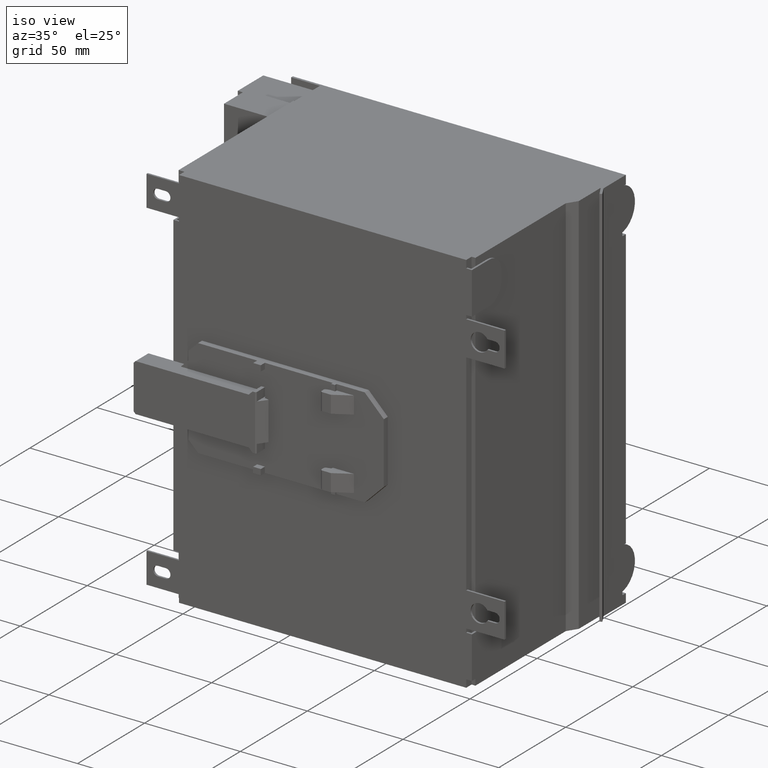
[diagram: clean part render]
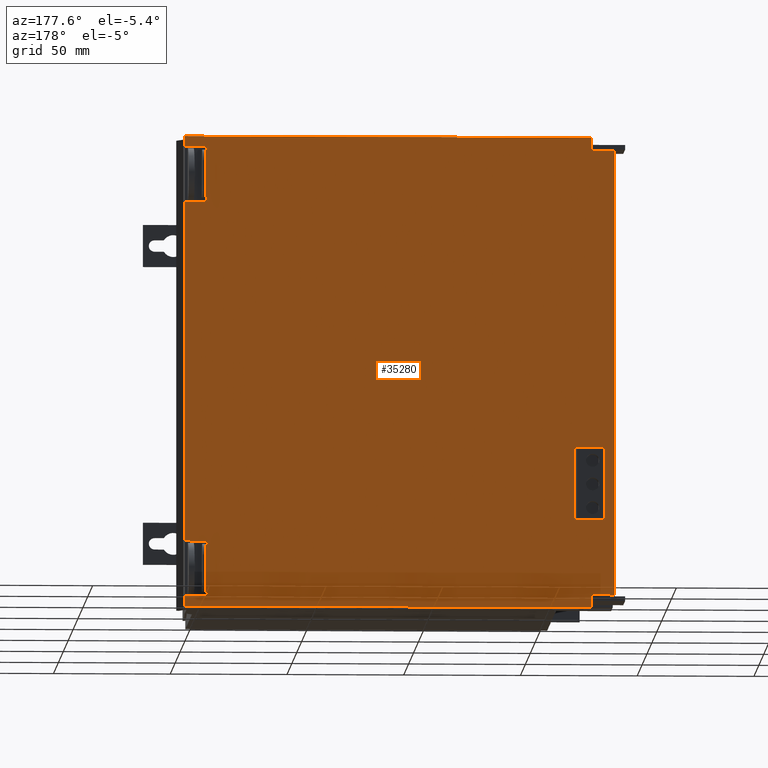
[diagram: tour spotlight — one face highlighted and labeled with its STEP entity id]
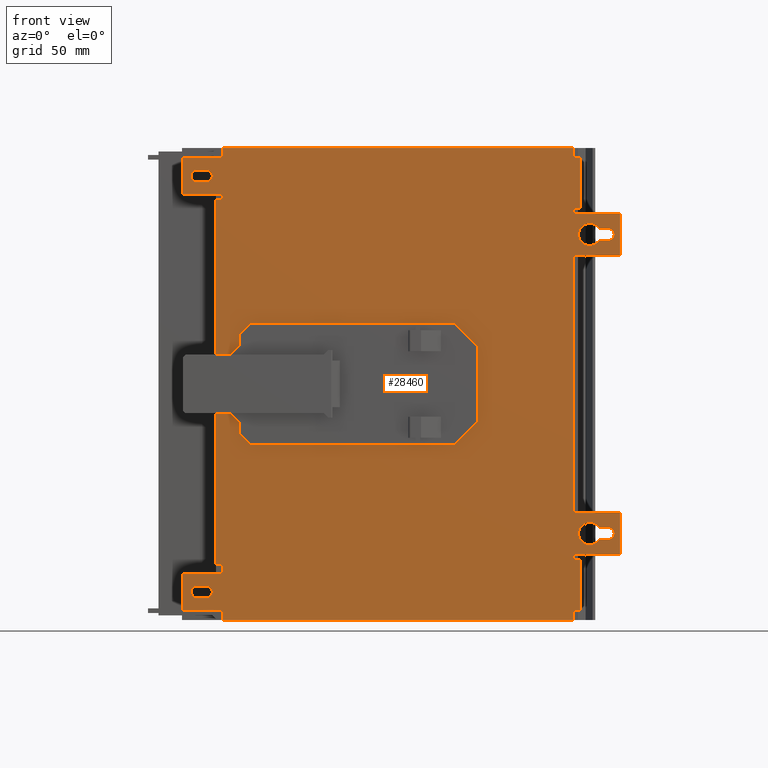
[diagram: tour spotlight — one face highlighted and labeled with its STEP entity id]
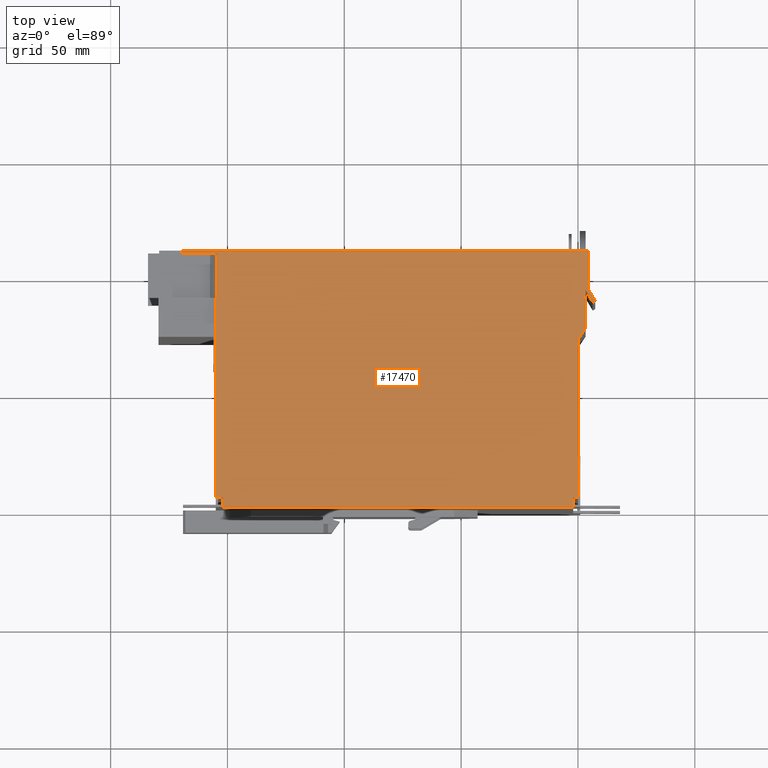
[diagram: tour spotlight — one face highlighted and labeled with its STEP entity id]
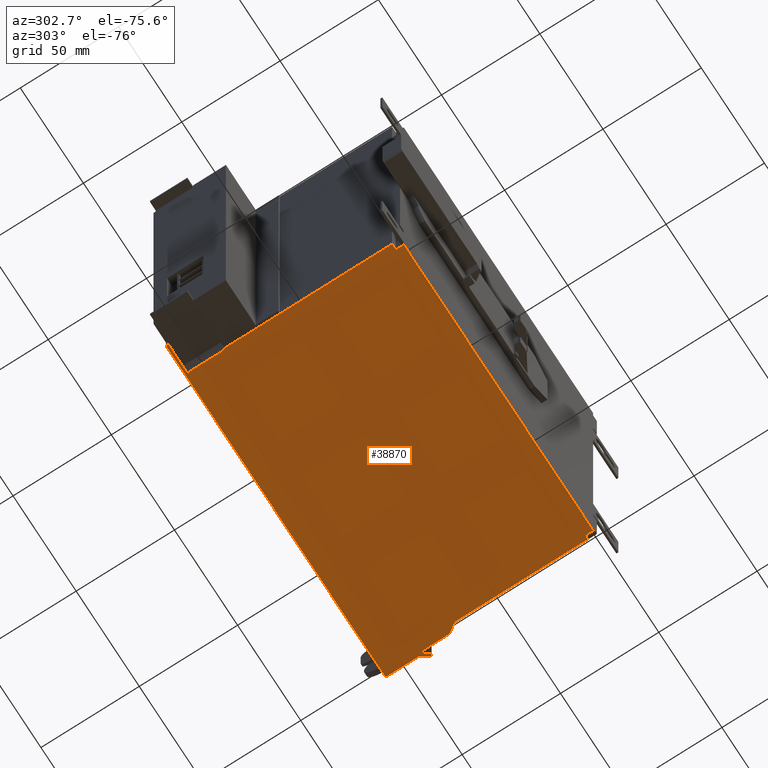
[diagram: tour spotlight — one face highlighted and labeled with its STEP entity id]
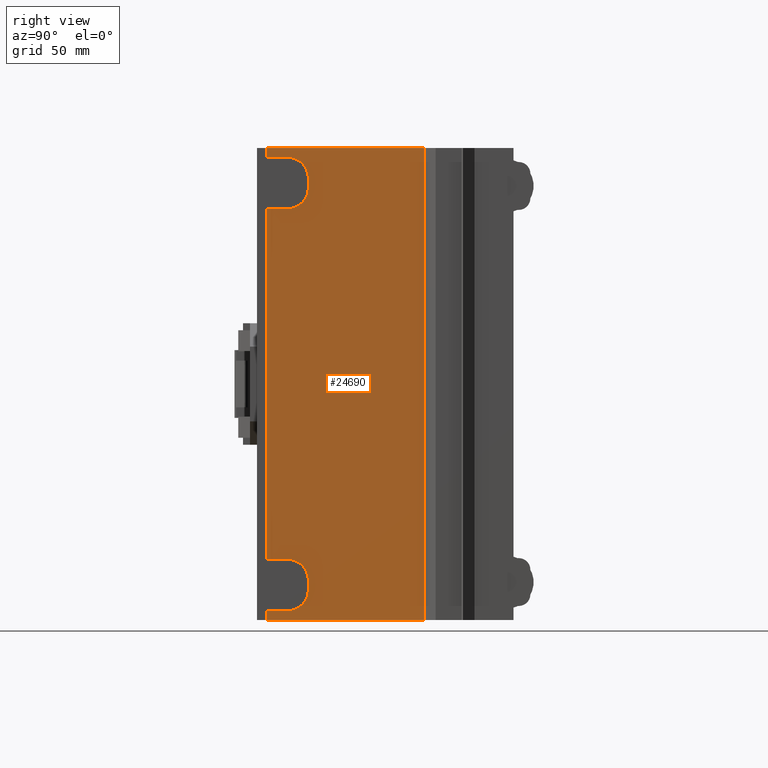
[diagram: tour spotlight — one face highlighted and labeled with its STEP entity id]
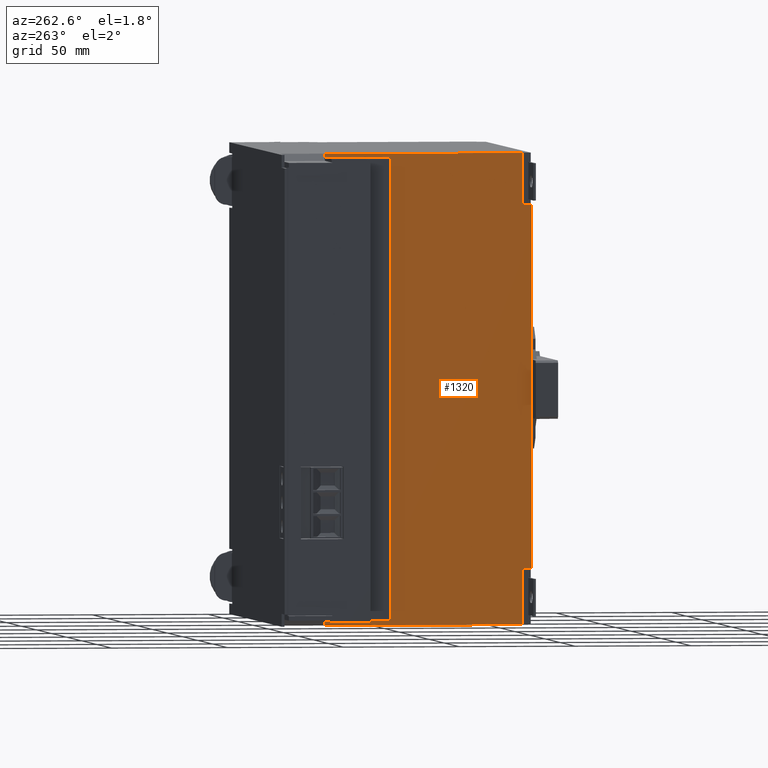
[diagram: tour spotlight — one face highlighted and labeled with its STEP entity id]
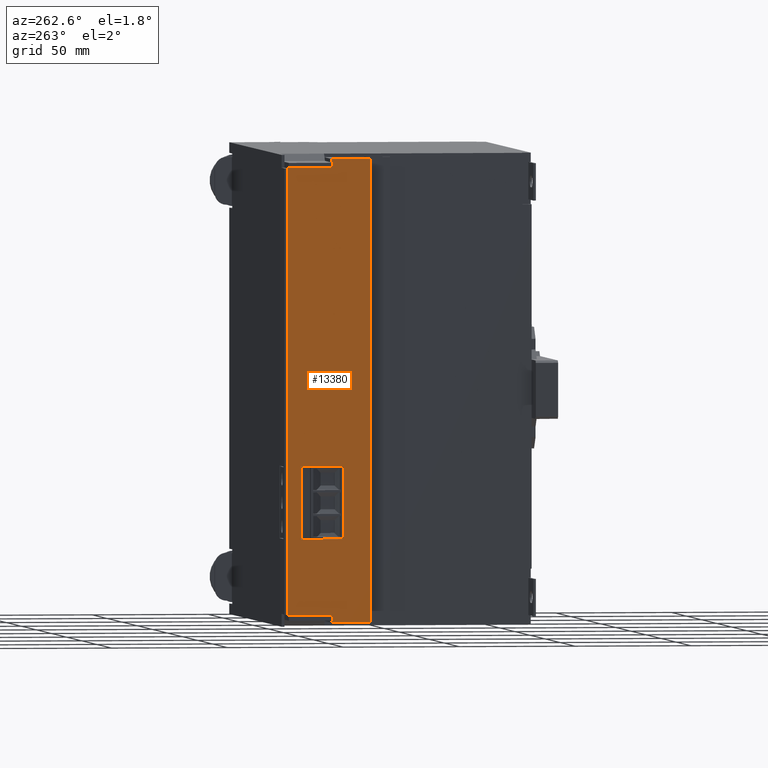
[diagram: tour spotlight — one face highlighted and labeled with its STEP entity id]
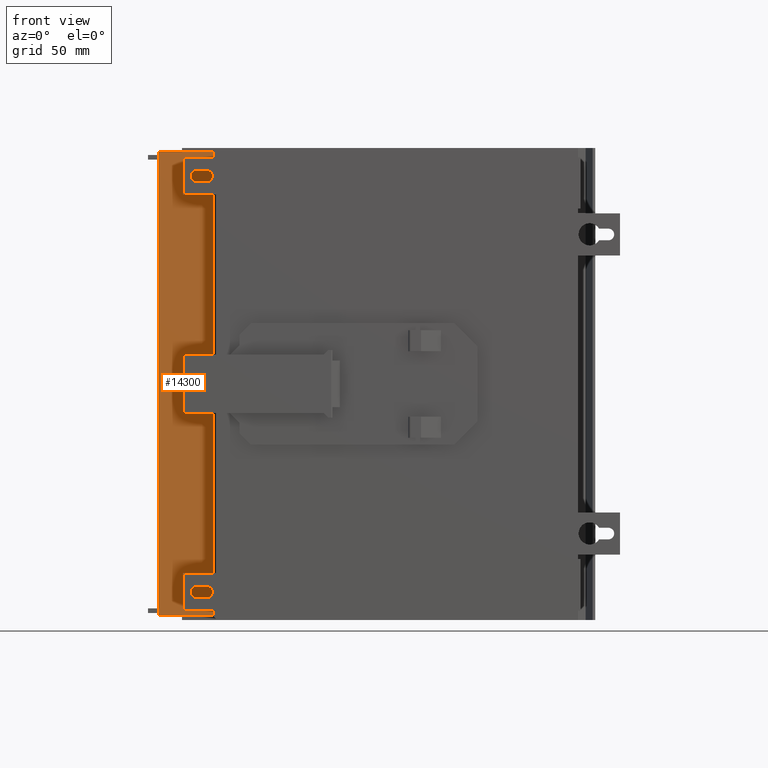
[diagram: tour spotlight — one face highlighted and labeled with its STEP entity id]
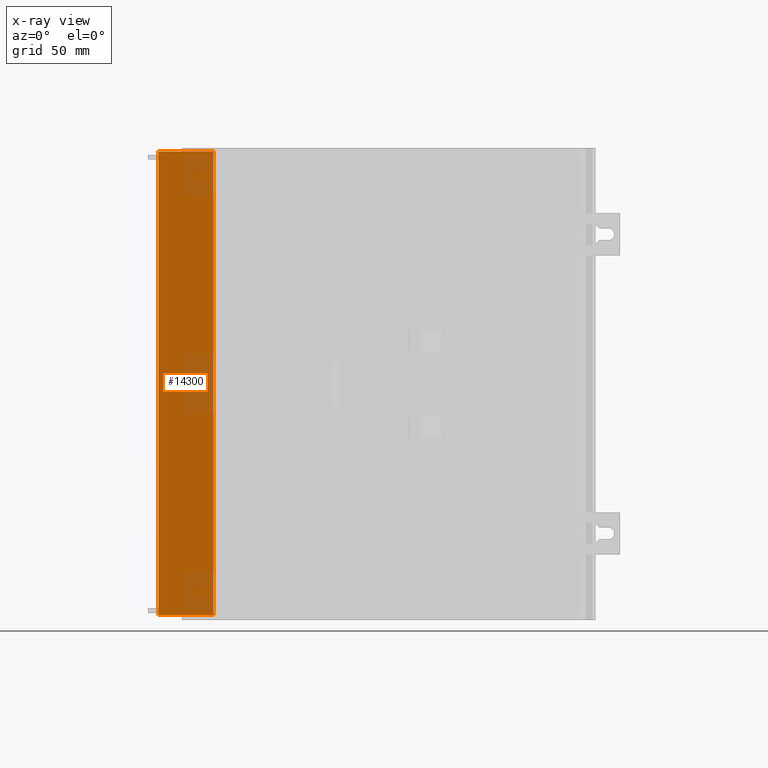
[diagram: x-ray of the same camera — body ghosted, this tour face saturated]
A machine part: a face-by-face anatomy tour. The part has 259 B-rep faces; the first image is the clean iso view, then the 8 largest visible faces are spotlighted one at a time (largest first), each with its STEP entity span.

Face 1 — auxiliary view, entity #35280. In plain terms, the highlighted planar face has unit normal (0, 1, 0).
Definition (entity closure, byte-faithful):
#1510=CARTESIAN_POINT('',(87.,108.75,25.25));
#1520=VERTEX_POINT('',#1510);
#1550=CARTESIAN_POINT('',(87.,108.75,25.25));
#1560=DIRECTION('',(0.,0.,1.));
#1570=VECTOR('',#1560,1.);
#1580=LINE('',#1550,#1570);
#1590=CARTESIAN_POINT('',(87.,108.75,15.45));
#1600=VERTEX_POINT('',#1590);
#1610=EDGE_CURVE('',#1600,#1520,#1580,.T.);
#12200=CARTESIAN_POINT('',(-104.,108.75,25.25));
#12210=VERTEX_POINT('',#12200);
#12240=CARTESIAN_POINT('',(-67.,108.75,25.25));
#12250=DIRECTION('',(1.,0.,0.));
#12260=VECTOR('',#12250,1.);
#12270=LINE('',#12240,#12260);
#12280=EDGE_CURVE('',#12210,#1520,#12270,.T.);
#15770=CARTESIAN_POINT('',(50.,108.75,15.45));
#15780=DIRECTION('',(1.,0.,0.));
#15790=VECTOR('',#15780,1.);
#15800=LINE('',#15770,#15790);
#15810=CARTESIAN_POINT('',(92.5,108.75,15.45));
#15820=VERTEX_POINT('',#15810);
#15830=EDGE_CURVE('',#1600,#15820,#15800,.T.);
#16590=CARTESIAN_POINT('',(92.5,108.75,-158.55));
#16600=VERTEX_POINT('',#16590);
#17390=CARTESIAN_POINT('',(92.5,108.75,0.));
#17400=DIRECTION('',(0.,0.,-1.));
#17410=VECTOR('',#17400,1.);
#17420=LINE('',#17390,#17410);
#17430=EDGE_CURVE('',#15820,#16600,#17420,.T.);
#17600=CARTESIAN_POINT('',(0.,108.75,-150.05));
#17610=DIRECTION('',(-1.,0.,-0.));
#17620=VECTOR('',#17610,1.);
#17630=LINE('',#17600,#17620);
#17640=CARTESIAN_POINT('',(86.5,108.75,-150.05));
#17650=VERTEX_POINT('',#17640);
#17660=CARTESIAN_POINT('',(66.,108.75,-150.05));
#17670=VERTEX_POINT('',#17660);
#17680=EDGE_CURVE('',#17650,#17670,#17630,.T.);
#31880=CARTESIAN_POINT('',(88.,108.75,-158.55));
#31890=VERTEX_POINT('',#31880);
#31920=CARTESIAN_POINT('',(88.,108.75,14.25));
#31930=DIRECTION('',(0.,0.,1.));
#31940=VECTOR('',#31930,1.);
#31950=LINE('',#31920,#31940);
#31960=CARTESIAN_POINT('',(88.,108.75,-148.8));
#31970=VERTEX_POINT('',#31960);
#31980=EDGE_CURVE('',#31890,#31970,#31950,.T.);
#32240=CARTESIAN_POINT('',(66.,108.75,25.25));
#32250=DIRECTION('',(0.,0.,-1.));
#32260=VECTOR('',#32250,1.);
#32270=LINE('',#32240,#32260);
#32280=CARTESIAN_POINT('',(66.,108.75,-148.8));
#32290=VERTEX_POINT('',#32280);
#32300=EDGE_CURVE('',#32290,#17670,#32270,.T.);
#32930=CARTESIAN_POINT('',(0.,108.75,-148.8));
#32940=DIRECTION('',(-1.,0.,-0.));
#32950=VECTOR('',#32940,1.);
#32960=LINE('',#32930,#32950);
#32970=CARTESIAN_POINT('',(86.5,108.75,-148.8));
#32980=VERTEX_POINT('',#32970);
#32990=EDGE_CURVE('',#31970,#32980,#32960,.T.);
#33090=CARTESIAN_POINT('',(64.5,108.75,-148.8));
#33100=VERTEX_POINT('',#33090);
#33110=EDGE_CURVE('',#32290,#33100,#32960,.T.);
#33430=CARTESIAN_POINT('',(64.5,108.75,0.));
#33440=DIRECTION('',(0.,0.,1.));
#33450=VECTOR('',#33440,1.);
#33460=LINE('',#33430,#33450);
#33470=CARTESIAN_POINT('',(64.5,108.75,-158.55));
#33480=VERTEX_POINT('',#33470);
#33490=EDGE_CURVE('',#33480,#33100,#33460,.T.);
#33750=CARTESIAN_POINT('',(0.,108.75,25.25));
#33760=DIRECTION('',(-0.,1.,0.));
#33770=DIRECTION('',(1.,0.,0.));
#33780=AXIS2_PLACEMENT_3D('',#33750,#33760,#33770);
#33790=PLANE('',#33780);
#33800=ORIENTED_EDGE('',*,*,#32300,.F.);
#33810=ORIENTED_EDGE('',*,*,#17680,.T.);
#33820=CARTESIAN_POINT('',(86.5,108.75,25.25));
#33830=DIRECTION('',(0.,0.,-1.));
#33840=VECTOR('',#33830,1.);
#33850=LINE('',#33820,#33840);
#33860=EDGE_CURVE('',#32980,#17650,#33850,.T.);
#33870=ORIENTED_EDGE('',*,*,#33860,.T.);
#33880=ORIENTED_EDGE('',*,*,#32990,.T.);
#33890=ORIENTED_EDGE('',*,*,#31980,.T.);
#33900=CARTESIAN_POINT('',(50.,108.75,-158.55));
#33910=DIRECTION('',(-1.,0.,0.));
#33920=VECTOR('',#33910,1.);
#33930=LINE('',#33900,#33920);
#33940=EDGE_CURVE('',#16600,#31890,#33930,.T.);
#33950=ORIENTED_EDGE('',*,*,#33940,.T.);
#33960=ORIENTED_EDGE('',*,*,#17430,.T.);
#33970=ORIENTED_EDGE('',*,*,#15830,.T.);
#33980=ORIENTED_EDGE('',*,*,#1610,.F.);
#33990=ORIENTED_EDGE('',*,*,#12280,.T.);
#34000=CARTESIAN_POINT('',(-104.,108.75,25.25));
#34010=DIRECTION('',(0.,0.,-1.));
#34020=VECTOR('',#34010,1.);
#34030=LINE('',#34000,#34020);
#34040=CARTESIAN_POINT('',(-104.,108.75,15.45));
#34050=VERTEX_POINT('',#34040);
#34060=EDGE_CURVE('',#12210,#34050,#34030,.T.);
#34070=ORIENTED_EDGE('',*,*,#34060,.F.);
#34080=CARTESIAN_POINT('',(-67.,108.75,15.45));
#34090=DIRECTION('',(1.,0.,0.));
#34100=VECTOR('',#34090,1.);
#34110=LINE('',#34080,#34100);
#34120=CARTESIAN_POINT('',(-109.5,108.75,15.45));
#34130=VERTEX_POINT('',#34120);
#34140=EDGE_CURVE('',#34130,#34050,#34110,.T.);
#34150=ORIENTED_EDGE('',*,*,#34140,.T.);
#34160=CARTESIAN_POINT('',(-109.5,108.75,0.));
#34170=DIRECTION('',(0.,0.,-1.));
#34180=VECTOR('',#34170,1.);
#34190=LINE('',#34160,#34180);
#34200=CARTESIAN_POINT('',(-109.5,108.75,-158.55));
#34210=VERTEX_POINT('',#34200);
#34220=EDGE_CURVE('',#34130,#34210,#34190,.T.);
#34230=ORIENTED_EDGE('',*,*,#34220,.F.);
#34240=CARTESIAN_POINT('',(-67.,108.75,-158.55));
#34250=DIRECTION('',(1.,0.,0.));
#34260=VECTOR('',#34250,1.);
#34270=LINE('',#34240,#34260);
#34280=CARTESIAN_POINT('',(-105.,108.75,-158.55));
#34290=VERTEX_POINT('',#34280);
#34300=EDGE_CURVE('',#34210,#34290,#34270,.T.);
#34310=ORIENTED_EDGE('',*,*,#34300,.F.);
#34320=CARTESIAN_POINT('',(-105.,108.75,14.25));
#34330=DIRECTION('',(0.,0.,1.));
#34340=VECTOR('',#34330,1.);
#34350=LINE('',#34320,#34340);
#34360=CARTESIAN_POINT('',(-105.,108.75,-148.8));
#34370=VERTEX_POINT('',#34360);
#34380=EDGE_CURVE('',#34290,#34370,#34350,.T.);
#34390=ORIENTED_EDGE('',*,*,#34380,.F.);
#34400=CARTESIAN_POINT('',(-17.,108.75,-148.8));
#34410=DIRECTION('',(1.,0.,0.));
#34420=VECTOR('',#34410,1.);
#34430=LINE('',#34400,#34420);
#34440=CARTESIAN_POINT('',(-103.5,108.75,-148.8));
#34450=VERTEX_POINT('',#34440);
#34460=EDGE_CURVE('',#34370,#34450,#34430,.T.);
#34470=ORIENTED_EDGE('',*,*,#34460,.F.);
#34480=CARTESIAN_POINT('',(-103.5,108.75,25.25));
#34490=DIRECTION('',(0.,0.,-1.));
#34500=VECTOR('',#34490,1.);
#34510=LINE('',#34480,#34500);
#34520=CARTESIAN_POINT('',(-103.5,108.75,-150.05));
#34530=VERTEX_POINT('',#34520);
#34540=EDGE_CURVE('',#34450,#34530,#34510,.T.);
#34550=ORIENTED_EDGE('',*,*,#34540,.F.);
#34560=CARTESIAN_POINT('',(-17.,108.75,-150.05));
#34570=DIRECTION('',(1.,0.,0.));
#34580=VECTOR('',#34570,1.);
#34590=LINE('',#34560,#34580);
#34600=CARTESIAN_POINT('',(-83.,108.75,-150.05));
#34610=VERTEX_POINT('',#34600);
#34620=EDGE_CURVE('',#34530,#34610,#34590,.T.);
#34630=ORIENTED_EDGE('',*,*,#34620,.F.);
#34640=CARTESIAN_POINT('',(-83.,108.75,25.25));
#34650=DIRECTION('',(0.,0.,-1.));
#34660=VECTOR('',#34650,1.);
#34670=LINE('',#34640,#34660);
#34680=CARTESIAN_POINT('',(-83.,108.75,-148.8));
#34690=VERTEX_POINT('',#34680);
#34700=EDGE_CURVE('',#34690,#34610,#34670,.T.);
#34710=ORIENTED_EDGE('',*,*,#34700,.T.);
#34720=CARTESIAN_POINT('',(-81.5,108.75,-148.8));
#34730=VERTEX_POINT('',#34720);
#34740=EDGE_CURVE('',#34690,#34730,#34430,.T.);
#34750=ORIENTED_EDGE('',*,*,#34740,.F.);
#34760=CARTESIAN_POINT('',(-81.5,108.75,0.));
#34770=DIRECTION('',(0.,0.,1.));
#34780=VECTOR('',#34770,1.);
#34790=LINE('',#34760,#34780);
#34800=CARTESIAN_POINT('',(-81.5,108.75,-158.55));
#34810=VERTEX_POINT('',#34800);
#34820=EDGE_CURVE('',#34810,#34730,#34790,.T.);
#34830=ORIENTED_EDGE('',*,*,#34820,.T.);
#34840=CARTESIAN_POINT('',(-67.,108.75,-158.55));
#34850=DIRECTION('',(1.,-0.,0.));
#34860=VECTOR('',#34850,1.);
#34870=LINE('',#34840,#34860);
#34880=EDGE_CURVE('',#34810,#33480,#34870,.T.);
#34890=ORIENTED_EDGE('',*,*,#34880,.F.);
#34900=ORIENTED_EDGE('',*,*,#33490,.F.);
#34910=ORIENTED_EDGE('',*,*,#33110,.T.);
#34920=EDGE_LOOP('',(#34910,#34900,#34890,#34830,#34750,#34710,#34630,
#34550,#34470,#34390,#34310,#34230,#34150,#34070,#33990,#33980,#33970,
#33960,#33950,#33890,#33880,#33870,#33810,#33800));
#34930=FACE_OUTER_BOUND('',#34920,.T.);
#34940=CARTESIAN_POINT('',(-71.75,108.75,0.));
#34950=DIRECTION('',(0.,0.,1.));
#34960=VECTOR('',#34950,1.);
#34970=LINE('',#34940,#34960);
#34980=CARTESIAN_POINT('',(-71.75,108.75,8.25));
#34990=VERTEX_POINT('',#34980);
#35000=CARTESIAN_POINT('',(-71.75,108.75,21.25));
#35010=VERTEX_POINT('',#35000);
#35020=EDGE_CURVE('',#34990,#35010,#34970,.T.);
#35030=ORIENTED_EDGE('',*,*,#35020,.F.);
#35040=CARTESIAN_POINT('',(-67.,108.75,21.25));
#35050=DIRECTION('',(1.,0.,0.));
#35060=VECTOR('',#35050,1.);
#35070=LINE('',#35040,#35060);
#35080=CARTESIAN_POINT('',(-40.75,108.75,21.25));
#35090=VERTEX_POINT('',#35080);
#35100=EDGE_CURVE('',#35010,#35090,#35070,.T.);
#35110=ORIENTED_EDGE('',*,*,#35100,.F.);
#35120=CARTESIAN_POINT('',(-40.75,108.75,0.));
#35130=DIRECTION('',(0.,0.,-1.));
#35140=VECTOR('',#35130,1.);
#35150=LINE('',#35120,#35140);
#35160=CARTESIAN_POINT('',(-40.75,108.75,8.25));
#35170=VERTEX_POINT('',#35160);
#35180=EDGE_CURVE('',#35090,#35170,#35150,.T.);
#35190=ORIENTED_EDGE('',*,*,#35180,.F.);
#35200=CARTESIAN_POINT('',(-67.,108.75,8.25));
#35210=DIRECTION('',(-1.,0.,0.));
#35220=VECTOR('',#35210,1.);
#35230=LINE('',#35200,#35220);
#35240=EDGE_CURVE('',#35170,#34990,#35230,.T.);
#35250=ORIENTED_EDGE('',*,*,#35240,.F.);
#35260=EDGE_LOOP('',(#35250,#35190,#35110,#35030));
#35270=FACE_BOUND('',#35260,.T.);
#35280=ADVANCED_FACE('',(#34930,#35270),#33790,.T.);

Face 2 — front view, entity #28460. In plain terms, the highlighted planar face has unit normal (0, 1, 0).
Definition (entity closure, byte-faithful):
#520=CARTESIAN_POINT('',(70.5,-1.,1.));
#530=VERTEX_POINT('',#520);
#560=CARTESIAN_POINT('',(0.,-1.,1.));
#570=DIRECTION('',(-1.,-0.,-0.));
#580=VECTOR('',#570,1.);
#590=LINE('',#560,#580);
#600=CARTESIAN_POINT('',(4.,-1.,1.));
#610=VERTEX_POINT('',#600);
#620=EDGE_CURVE('',#530,#610,#590,.T.);
#680=CARTESIAN_POINT('',(-21.,-1.,1.));
#690=VERTEX_POINT('',#680);
#720=CARTESIAN_POINT('',(-85.5,-1.,1.));
#730=VERTEX_POINT('',#720);
#740=EDGE_CURVE('',#690,#730,#590,.T.);
#5570=CARTESIAN_POINT('',(83.,-1.,9.));
#5580=VERTEX_POINT('',#5570);
#5760=CARTESIAN_POINT('',(78.,-1.,9.));
#5770=VERTEX_POINT('',#5760);
#5800=CARTESIAN_POINT('',(80.5,-1.,9.));
#5810=DIRECTION('',(0.,1.,0.));
#5820=DIRECTION('',(-1.,0.,0.));
#5830=AXIS2_PLACEMENT_3D('',#5800,#5810,#5820);
#5840=CIRCLE('',#5830,2.5);
#5850=EDGE_CURVE('',#5770,#5580,#5840,.T.);
#7640=CARTESIAN_POINT('',(-85.5,-1.,-2.));
#7650=VERTEX_POINT('',#7640);
#7680=CARTESIAN_POINT('',(-67.,-1.,-2.));
#7690=DIRECTION('',(-1.,0.,0.));
#7700=VECTOR('',#7690,1.);
#7710=LINE('',#7680,#7700);
#7720=CARTESIAN_POINT('',(-89.5,-1.,-2.));
#7730=VERTEX_POINT('',#7720);
#7740=EDGE_CURVE('',#7650,#7730,#7710,.T.);
#7960=CARTESIAN_POINT('',(-105.5,-1.,-2.));
#7970=VERTEX_POINT('',#7960);
#8000=CARTESIAN_POINT('',(-109.5,-1.,-2.));
#8010=VERTEX_POINT('',#8000);
#8020=EDGE_CURVE('',#7970,#8010,#7710,.T.);
#8150=CARTESIAN_POINT('',(92.5,-1.,-2.));
#8160=VERTEX_POINT('',#8150);
#8190=CARTESIAN_POINT('',(0.,-1.,-2.));
#8200=DIRECTION('',(-1.,0.,0.));
#8210=VECTOR('',#8200,1.);
#8220=LINE('',#8190,#8210);
#8230=CARTESIAN_POINT('',(88.5,-1.,-2.));
#8240=VERTEX_POINT('',#8230);
#8250=EDGE_CURVE('',#8160,#8240,#8220,.T.);
#8380=CARTESIAN_POINT('',(72.5,-1.,-2.));
#8390=VERTEX_POINT('',#8380);
#8420=CARTESIAN_POINT('',(0.,-1.,-2.));
#8430=DIRECTION('',(-1.,-0.,-0.));
#8440=VECTOR('',#8430,1.);
#8450=LINE('',#8420,#8440);
#8460=CARTESIAN_POINT('',(70.5,-1.,-2.));
#8470=VERTEX_POINT('',#8460);
#8480=EDGE_CURVE('',#8390,#8470,#8450,.T.);
#8800=CARTESIAN_POINT('',(88.5,-1.,0.));
#8810=DIRECTION('',(0.,-0.,1.));
#8820=VECTOR('',#8810,1.);
#8830=LINE('',#8800,#8820);
#8840=CARTESIAN_POINT('',(88.5,-1.,15.));
#8850=VERTEX_POINT('',#8840);
#8860=EDGE_CURVE('',#8240,#8850,#8830,.T.);
#9110=CARTESIAN_POINT('',(0.,-1.,15.));
#9120=DIRECTION('',(-1.,0.,0.));
#9130=VECTOR('',#9120,1.);
#9140=LINE('',#9110,#9130);
#9150=CARTESIAN_POINT('',(72.5,-1.,15.));
#9160=VERTEX_POINT('',#9150);
#9170=EDGE_CURVE('',#8850,#9160,#9140,.T.);
#9420=CARTESIAN_POINT('',(72.5,-1.,0.));
#9430=DIRECTION('',(0.,-0.,1.));
#9440=VECTOR('',#9430,1.);
#9450=LINE('',#9420,#9440);
#9460=EDGE_CURVE('',#8390,#9160,#9450,.T.);
#9660=CARTESIAN_POINT('',(83.,-1.,0.));
#9670=DIRECTION('',(0.,-0.,1.));
#9680=VECTOR('',#9670,1.);
#9690=LINE('',#9660,#9680);
#9700=CARTESIAN_POINT('',(83.,-1.,5.));
#9710=VERTEX_POINT('',#9700);
#9720=EDGE_CURVE('',#9710,#5580,#9690,.T.);
#10020=CARTESIAN_POINT('',(78.,-1.,5.));
#10030=VERTEX_POINT('',#10020);
#10060=CARTESIAN_POINT('',(78.,-1.,0.));
#10070=DIRECTION('',(0.,0.,-1.));
#10080=VECTOR('',#10070,1.);
#10090=LINE('',#10060,#10080);
#10100=EDGE_CURVE('',#5770,#10030,#10090,.T.);
#10300=CARTESIAN_POINT('',(80.5,-1.,5.));
#10310=DIRECTION('',(0.,1.,0.));
#10320=DIRECTION('',(1.,0.,0.));
#10330=AXIS2_PLACEMENT_3D('',#10300,#10310,#10320);
#10340=CIRCLE('',#10330,2.5);
#10350=EDGE_CURVE('',#9710,#10030,#10340,.T.);
#10820=CARTESIAN_POINT('',(70.5,-1.,0.));
#10830=DIRECTION('',(-0.,0.,-1.));
#10840=VECTOR('',#10830,1.);
#10850=LINE('',#10820,#10840);
#10860=EDGE_CURVE('',#530,#8470,#10850,.T.);
#17220=CARTESIAN_POINT('',(92.5,-1.,-152.));
#17230=VERTEX_POINT('',#17220);
#17260=CARTESIAN_POINT('',(92.5,-1.,-11.));
#17270=DIRECTION('',(0.,0.,1.));
#17280=VECTOR('',#17270,1.);
#17290=LINE('',#17260,#17280);
#17300=EDGE_CURVE('',#17230,#8160,#17290,.T.);
#18420=CARTESIAN_POINT('',(-100.,-1.,5.));
#18430=VERTEX_POINT('',#18420);
#18610=CARTESIAN_POINT('',(-95.,-1.,5.));
#18620=VERTEX_POINT('',#18610);
#18650=CARTESIAN_POINT('',(-97.5,-1.,5.));
#18660=DIRECTION('',(0.,1.,0.));
#18670=DIRECTION('',(1.,0.,0.));
#18680=AXIS2_PLACEMENT_3D('',#18650,#18660,#18670);
#18690=CIRCLE('',#18680,2.5);
#18700=EDGE_CURVE('',#18620,#18430,#18690,.T.);
#18940=CARTESIAN_POINT('',(-81.5,-1.,-152.));
#18950=VERTEX_POINT('',#18940);
#18980=CARTESIAN_POINT('',(-81.5,-1.,0.));
#18990=DIRECTION('',(0.,0.,1.));
#19000=VECTOR('',#18990,1.);
#19010=LINE('',#18980,#19000);
#19020=CARTESIAN_POINT('',(-81.5,-1.,-172.));
#19030=VERTEX_POINT('',#19020);
#19040=EDGE_CURVE('',#19030,#18950,#19010,.T.);
#19710=CARTESIAN_POINT('',(-109.5,-1.,-152.));
#19720=VERTEX_POINT('',#19710);
#19750=CARTESIAN_POINT('',(-17.,-1.,-152.));
#19760=DIRECTION('',(-1.,0.,0.));
#19770=VECTOR('',#19760,1.);
#19780=LINE('',#19750,#19770);
#19790=CARTESIAN_POINT('',(-105.5,-1.,-152.));
#19800=VERTEX_POINT('',#19790);
#19810=EDGE_CURVE('',#19800,#19720,#19780,.T.);
#20030=CARTESIAN_POINT('',(-83.5,-1.,-152.));
#20040=VERTEX_POINT('',#20030);
#20070=EDGE_CURVE('',#18950,#20040,#19780,.T.);
#20220=CARTESIAN_POINT('',(-63.5,-1.,-152.));
#20230=VERTEX_POINT('',#20220);
#20260=CARTESIAN_POINT('',(0.,-1.,-152.));
#20270=DIRECTION('',(1.,-0.,0.));
#20280=VECTOR('',#20270,1.);
#20290=LINE('',#20260,#20280);
#20300=CARTESIAN_POINT('',(46.5,-1.,-152.));
#20310=VERTEX_POINT('',#20300);
#20320=EDGE_CURVE('',#20230,#20310,#20290,.T.);
#20540=CARTESIAN_POINT('',(64.5,-1.,-152.));
#20550=VERTEX_POINT('',#20540);
#20580=CARTESIAN_POINT('',(0.,-1.,-152.));
#20590=DIRECTION('',(1.,0.,0.));
#20600=VECTOR('',#20590,1.);
#20610=LINE('',#20580,#20600);
#20620=CARTESIAN_POINT('',(66.5,-1.,-152.));
#20630=VERTEX_POINT('',#20620);
#20640=EDGE_CURVE('',#20550,#20630,#20610,.T.);
#20860=CARTESIAN_POINT('',(88.5,-1.,-152.));
#20870=VERTEX_POINT('',#20860);
#20900=EDGE_CURVE('',#20870,#17230,#20610,.T.);
#22450=CARTESIAN_POINT('',(66.5,-1.,-155.));
#22460=VERTEX_POINT('',#22450);
#22730=CARTESIAN_POINT('',(66.5,-1.,0.));
#22740=DIRECTION('',(-0.,0.,-1.));
#22750=VECTOR('',#22740,1.);
#22760=LINE('',#22730,#22750);
#22770=EDGE_CURVE('',#20630,#22460,#22760,.T.);
#23680=CARTESIAN_POINT('',(88.5,-1.,-155.));
#23690=VERTEX_POINT('',#23680);
#23720=CARTESIAN_POINT('',(88.5,-1.,-153.));
#23730=DIRECTION('',(0.,0.,1.));
#23740=VECTOR('',#23730,1.);
#23750=LINE('',#23720,#23740);
#23760=EDGE_CURVE('',#23690,#20870,#23750,.T.);
#24860=CARTESIAN_POINT('',(-89.5,-1.,15.));
#24870=VERTEX_POINT('',#24860);
#24920=CARTESIAN_POINT('',(-67.,-1.,15.));
#24930=DIRECTION('',(-1.,0.,0.));
#24940=VECTOR('',#24930,1.);
#24950=LINE('',#24920,#24940);
#24960=CARTESIAN_POINT('',(-105.5,-1.,15.));
#24970=VERTEX_POINT('',#24960);
#24980=EDGE_CURVE('',#24870,#24970,#24950,.T.);
#25170=CARTESIAN_POINT('',(-8.5,-1.,0.));
#25180=DIRECTION('',(-0.,1.,0.));
#25190=DIRECTION('',(1.,0.,0.));
#25200=AXIS2_PLACEMENT_3D('',#25170,#25180,#25190);
#25210=PLANE('',#25200);
#25220=CARTESIAN_POINT('',(58.,-1.,0.));
#25230=DIRECTION('',(0.,0.,-1.));
#25240=VECTOR('',#25230,1.);
#25250=LINE('',#25220,#25240);
#25260=CARTESIAN_POINT('',(57.999999999978,-1.,-163.038873605364));
#25270=VERTEX_POINT('',#25260);
#25280=CARTESIAN_POINT('',(58.,-1.,-167.));
#25290=VERTEX_POINT('',#25280);
#25300=EDGE_CURVE('',#25270,#25290,#25250,.T.);
#25310=ORIENTED_EDGE('',*,*,#25300,.T.);
#25320=CARTESIAN_POINT('',(55.5,-1.,-159.));
#25330=DIRECTION('',(0.,1.,0.));
#25340=DIRECTION('',(-0.526315789473682,0.,-0.850289180073871));
#25350=AXIS2_PLACEMENT_3D('',#25320,#25330,#25340);
#25360=CIRCLE('',#25350,4.75);
#25370=CARTESIAN_POINT('',(58.,-1.,-154.961126394649));
#25380=VERTEX_POINT('',#25370);
#25390=EDGE_CURVE('',#25380,#25270,#25360,.T.);
#25400=ORIENTED_EDGE('',*,*,#25390,.T.);
#25410=CARTESIAN_POINT('',(53.,-1.,-163.038873605351));
#25420=VERTEX_POINT('',#25410);
#25430=EDGE_CURVE('',#25420,#25380,#25360,.T.);
#25440=ORIENTED_EDGE('',*,*,#25430,.T.);
#25450=CARTESIAN_POINT('',(53.,-1.,0.));
#25460=DIRECTION('',(0.,-0.,1.));
#25470=VECTOR('',#25460,1.);
#25480=LINE('',#25450,#25470);
#25490=CARTESIAN_POINT('',(53.,-1.,-167.));
#25500=VERTEX_POINT('',#25490);
#25510=EDGE_CURVE('',#25500,#25420,#25480,.T.);
#25520=ORIENTED_EDGE('',*,*,#25510,.T.);
#25530=CARTESIAN_POINT('',(55.5,-1.,-167.));
#25540=DIRECTION('',(0.,1.,0.));
#25550=DIRECTION('',(1.,0.,-0.));
#25560=AXIS2_PLACEMENT_3D('',#25530,#25540,#25550);
#25570=CIRCLE('',#25560,2.5);
#25580=EDGE_CURVE('',#25290,#25500,#25570,.T.);
#25590=ORIENTED_EDGE('',*,*,#25580,.T.);
#25600=EDGE_LOOP('',(#25590,#25520,#25440,#25400,#25310));
#25610=FACE_BOUND('',#25600,.T.);
#25620=ORIENTED_EDGE('',*,*,#18700,.T.);
#25630=CARTESIAN_POINT('',(-95.,-1.,0.));
#25640=DIRECTION('',(0.,-0.,1.));
#25650=VECTOR('',#25640,1.);
#25660=LINE('',#25630,#25650);
#25670=CARTESIAN_POINT('',(-95.,-1.,9.));
#25680=VERTEX_POINT('',#25670);
#25690=EDGE_CURVE('',#18620,#25680,#25660,.T.);
#25700=ORIENTED_EDGE('',*,*,#25690,.F.);
#25710=CARTESIAN_POINT('',(-97.5,-1.,9.));
#25720=DIRECTION('',(0.,1.,0.));
#25730=DIRECTION('',(-1.,0.,0.));
#25740=AXIS2_PLACEMENT_3D('',#25710,#25720,#25730);
#25750=CIRCLE('',#25740,2.5);
#25760=CARTESIAN_POINT('',(-100.,-1.,9.));
#25770=VERTEX_POINT('',#25760);
#25780=EDGE_CURVE('',#25770,#25680,#25750,.T.);
#25790=ORIENTED_EDGE('',*,*,#25780,.T.);
#25800=CARTESIAN_POINT('',(-100.,-1.,0.));
#25810=DIRECTION('',(0.,0.,-1.));
#25820=VECTOR('',#25810,1.);
#25830=LINE('',#25800,#25820);
#25840=EDGE_CURVE('',#25770,#18430,#25830,.T.);
#25850=ORIENTED_EDGE('',*,*,#25840,.F.);
#25860=EDGE_LOOP('',(#25850,#25790,#25700,#25620));
#25870=FACE_BOUND('',#25860,.T.);
#25880=CARTESIAN_POINT('',(-72.5,-1.,-167.));
#25890=DIRECTION('',(0.,-1.,0.));
#25900=DIRECTION('',(-1.,0.,0.));
#25910=AXIS2_PLACEMENT_3D('',#25880,#25890,#25900);
#25920=CIRCLE('',#25910,2.5);
#25930=CARTESIAN_POINT('',(-75.,-1.,-167.));
#25940=VERTEX_POINT('',#25930);
#25950=CARTESIAN_POINT('',(-70.,-1.,-167.));
#25960=VERTEX_POINT('',#25950);
#25970=EDGE_CURVE('',#25940,#25960,#25920,.T.);
#25980=ORIENTED_EDGE('',*,*,#25970,.F.);
#25990=CARTESIAN_POINT('',(-70.,-1.,0.));
#26000=DIRECTION('',(0.,0.,1.));
#26010=VECTOR('',#26000,1.);
#26020=LINE('',#25990,#26010);
#26030=CARTESIAN_POINT('',(-70.,-1.,-163.038873605351));
#26040=VERTEX_POINT('',#26030);
#26050=EDGE_CURVE('',#25960,#26040,#26020,.T.);
#26060=ORIENTED_EDGE('',*,*,#26050,.F.);
#26070=CARTESIAN_POINT('',(-72.5,-1.,-159.));
#26080=DIRECTION('',(0.,-1.,0.));
#26090=DIRECTION('',(0.526315789473682,0.,-0.850289180073871));
#26100=AXIS2_PLACEMENT_3D('',#26070,#26080,#26090);
#26110=CIRCLE('',#26100,4.75);
#26120=CARTESIAN_POINT('',(-75.,-1.,-154.961126394649));
#26130=VERTEX_POINT('',#26120);
#26140=EDGE_CURVE('',#26040,#26130,#26110,.T.);
#26150=ORIENTED_EDGE('',*,*,#26140,.F.);
#26160=CARTESIAN_POINT('',(-74.999999999978,-1.,-163.038873605364));
#26170=VERTEX_POINT('',#26160);
#26180=EDGE_CURVE('',#26130,#26170,#26110,.T.);
#26190=ORIENTED_EDGE('',*,*,#26180,.F.);
#26200=CARTESIAN_POINT('',(-75.,-1.,0.));
#26210=DIRECTION('',(0.,0.,-1.));
#26220=VECTOR('',#26210,1.);
#26230=LINE('',#26200,#26220);
#26240=EDGE_CURVE('',#26170,#25940,#26230,.T.);
#26250=ORIENTED_EDGE('',*,*,#26240,.F.);
#26260=EDGE_LOOP('',(#26250,#26190,#26150,#26060,#25980));
#26270=FACE_BOUND('',#26260,.T.);
#26280=ORIENTED_EDGE('',*,*,#20320,.T.);
#26290=CARTESIAN_POINT('',(-63.5,-1.,0.));
#26300=DIRECTION('',(0.,0.,-1.));
#26310=VECTOR('',#26300,1.);
#26320=LINE('',#26290,#26310);
#26330=CARTESIAN_POINT('',(-63.5,-1.,-172.));
#26340=VERTEX_POINT('',#26330);
#26350=EDGE_CURVE('',#20230,#26340,#26320,.T.);
#26360=ORIENTED_EDGE('',*,*,#26350,.F.);
#26370=CARTESIAN_POINT('',(-8.5,-1.,-172.));
#26380=DIRECTION('',(-1.,0.,0.));
#26390=VECTOR('',#26380,1.);
#26400=LINE('',#26370,#26390);
#26410=EDGE_CURVE('',#26340,#19030,#26400,.T.);
#26420=ORIENTED_EDGE('',*,*,#26410,.F.);
#26430=ORIENTED_EDGE('',*,*,#19040,.F.);
#26440=ORIENTED_EDGE('',*,*,#20070,.F.);
#26450=CARTESIAN_POINT('',(-83.5,-1.,0.));
#26460=DIRECTION('',(0.,0.,-1.));
#26470=VECTOR('',#26460,1.);
#26480=LINE('',#26450,#26470);
#26490=CARTESIAN_POINT('',(-83.5,-1.,-155.));
#26500=VERTEX_POINT('',#26490);
#26510=EDGE_CURVE('',#20040,#26500,#26480,.T.);
#26520=ORIENTED_EDGE('',*,*,#26510,.F.);
#26530=CARTESIAN_POINT('',(-83.5,-1.,-155.));
#26540=DIRECTION('',(-1.,0.,0.));
#26550=VECTOR('',#26540,1.);
#26560=LINE('',#26530,#26550);
#26570=CARTESIAN_POINT('',(-105.5,-1.,-155.));
#26580=VERTEX_POINT('',#26570);
#26590=EDGE_CURVE('',#26500,#26580,#26560,.T.);
#26600=ORIENTED_EDGE('',*,*,#26590,.F.);
#26610=CARTESIAN_POINT('',(-105.5,-1.,-153.));
#26620=DIRECTION('',(0.,0.,1.));
#26630=VECTOR('',#26620,1.);
#26640=LINE('',#26610,#26630);
#26650=EDGE_CURVE('',#26580,#19800,#26640,.T.);
#26660=ORIENTED_EDGE('',*,*,#26650,.F.);
#26670=ORIENTED_EDGE('',*,*,#19810,.F.);
#26680=CARTESIAN_POINT('',(-109.5,-1.,-11.));
#26690=DIRECTION('',(0.,0.,1.));
#26700=VECTOR('',#26690,1.);
#26710=LINE('',#26680,#26700);
#26720=EDGE_CURVE('',#19720,#8010,#26710,.T.);
#26730=ORIENTED_EDGE('',*,*,#26720,.F.);
#26740=ORIENTED_EDGE('',*,*,#8020,.T.);
#26750=CARTESIAN_POINT('',(-105.5,-1.,0.));
#26760=DIRECTION('',(0.,0.,-1.));
#26770=VECTOR('',#26760,1.);
#26780=LINE('',#26750,#26770);
#26790=EDGE_CURVE('',#24970,#7970,#26780,.T.);
#26800=ORIENTED_EDGE('',*,*,#26790,.T.);
#26810=ORIENTED_EDGE('',*,*,#24980,.T.);
#26820=CARTESIAN_POINT('',(-89.5,-1.,0.));
#26830=DIRECTION('',(0.,-0.,1.));
#26840=VECTOR('',#26830,1.);
#26850=LINE('',#26820,#26840);
#26860=EDGE_CURVE('',#7730,#24870,#26850,.T.);
#26870=ORIENTED_EDGE('',*,*,#26860,.T.);
#26880=ORIENTED_EDGE('',*,*,#7740,.T.);
#26890=CARTESIAN_POINT('',(-85.5,-1.,0.));
#26900=DIRECTION('',(0.,0.,-1.));
#26910=VECTOR('',#26900,1.);
#26920=LINE('',#26890,#26910);
#26930=EDGE_CURVE('',#730,#7650,#26920,.T.);
#26940=ORIENTED_EDGE('',*,*,#26930,.T.);
#26950=ORIENTED_EDGE('',*,*,#740,.T.);
#26960=CARTESIAN_POINT('',(-21.,-1.,0.));
#26970=DIRECTION('',(0.,0.,-1.));
#26980=VECTOR('',#26970,1.);
#26990=LINE('',#26960,#26980);
#27000=CARTESIAN_POINT('',(-21.,-1.,-5.04999999999998));
#27010=VERTEX_POINT('',#27000);
#27020=EDGE_CURVE('',#690,#27010,#26990,.T.);
#27030=ORIENTED_EDGE('',*,*,#27020,.F.);
#27040=CARTESIAN_POINT('',(-15.95,-1.,0.));
#27050=DIRECTION('',(0.707106781186548,0.,0.707106781186548));
#27060=VECTOR('',#27050,1.);
#27070=LINE('',#27040,#27060);
#27080=CARTESIAN_POINT('',(-25.,-1.,-9.04999999999998));
#27090=VERTEX_POINT('',#27080);
#27100=EDGE_CURVE('',#27090,#27010,#27070,.T.);
#27110=ORIENTED_EDGE('',*,*,#27100,.T.);
#27120=CARTESIAN_POINT('',(0.,-1.,-9.04999999999998));
#27130=DIRECTION('',(1.,0.,-0.));
#27140=VECTOR('',#27130,1.);
#27150=LINE('',#27120,#27140);
#27160=CARTESIAN_POINT('',(-29.5,-1.,-9.04999999999998));
#27170=VERTEX_POINT('',#27160);
#27180=EDGE_CURVE('',#27170,#27090,#27150,.T.);
#27190=ORIENTED_EDGE('',*,*,#27180,.T.);
#27200=CARTESIAN_POINT('',(-20.4500000000013,-1.,0.));
#27210=DIRECTION('',(0.707106781186498,0.,0.707106781186598));
#27220=VECTOR('',#27210,1.);
#27230=LINE('',#27200,#27220);
#27240=CARTESIAN_POINT('',(-34.5,-1.,-14.0500000000007));
#27250=VERTEX_POINT('',#27240);
#27260=EDGE_CURVE('',#27250,#27170,#27230,.T.);
#27270=ORIENTED_EDGE('',*,*,#27260,.T.);
#27280=CARTESIAN_POINT('',(-34.5,-1.,0.));
#27290=DIRECTION('',(0.,0.,-1.));
#27300=VECTOR('',#27290,1.);
#27310=LINE('',#27280,#27300);
#27320=CARTESIAN_POINT('',(-34.5,-1.,-101.05));
#27330=VERTEX_POINT('',#27320);
#27340=EDGE_CURVE('',#27250,#27330,#27310,.T.);
#27350=ORIENTED_EDGE('',*,*,#27340,.F.);
#27360=CARTESIAN_POINT('',(-135.55,-1.,0.));
#27370=DIRECTION('',(-0.707106781186548,0.,0.707106781186548));
#27380=VECTOR('',#27370,1.);
#27390=LINE('',#27360,#27380);
#27400=CARTESIAN_POINT('',(-24.5,-1.,-111.05));
#27410=VERTEX_POINT('',#27400);
#27420=EDGE_CURVE('',#27410,#27330,#27390,.T.);
#27430=ORIENTED_EDGE('',*,*,#27420,.T.);
#27440=CARTESIAN_POINT('',(0.,-1.,-111.05));
#27450=DIRECTION('',(1.,0.,-0.));
#27460=VECTOR('',#27450,1.);
#27470=LINE('',#27440,#27460);
#27480=CARTESIAN_POINT('',(7.49999999999999,-1.,-111.05));
#27490=VERTEX_POINT('',#27480);
#27500=EDGE_CURVE('',#27410,#27490,#27470,.T.);
#27510=ORIENTED_EDGE('',*,*,#27500,.F.);
#27520=CARTESIAN_POINT('',(118.55,-1.,0.));
#27530=DIRECTION('',(-0.707106781186548,0.,-0.707106781186548));
#27540=VECTOR('',#27530,1.);
#27550=LINE('',#27520,#27540);
#27560=CARTESIAN_POINT('',(17.5,-1.,-101.05));
#27570=VERTEX_POINT('',#27560);
#27580=EDGE_CURVE('',#27570,#27490,#27550,.T.);
#27590=ORIENTED_EDGE('',*,*,#27580,.T.);
#27600=CARTESIAN_POINT('',(17.5,-1.,0.));
#27610=DIRECTION('',(0.,0.,-1.));
#27620=VECTOR('',#27610,1.);
#27630=LINE('',#27600,#27620);
#27640=CARTESIAN_POINT('',(17.5,-1.,-14.0500000000003));
#27650=VERTEX_POINT('',#27640);
#27660=EDGE_CURVE('',#27650,#27570,#27630,.T.);
#27670=ORIENTED_EDGE('',*,*,#27660,.T.);
#27680=CARTESIAN_POINT('',(3.45000000000002,-1.,0.));
#27690=DIRECTION('',(0.707106781186548,0.,-0.707106781186548));
#27700=VECTOR('',#27690,1.);
#27710=LINE('',#27680,#27700);
#27720=CARTESIAN_POINT('',(12.5,-1.,-9.04999999999998));
#27730=VERTEX_POINT('',#27720);
#27740=EDGE_CURVE('',#27730,#27650,#27710,.T.);
#27750=ORIENTED_EDGE('',*,*,#27740,.T.);
#27760=CARTESIAN_POINT('',(0.,-1.,-9.04999999999998));
#27770=DIRECTION('',(1.,0.,-0.));
#27780=VECTOR('',#27770,1.);
#27790=LINE('',#27760,#27780);
#27800=CARTESIAN_POINT('',(8.00000000000001,-1.,-9.04999999999998));
#27810=VERTEX_POINT('',#27800);
#27820=EDGE_CURVE('',#27810,#27730,#27790,.T.);
#27830=ORIENTED_EDGE('',*,*,#27820,.T.);
#27840=CARTESIAN_POINT('',(-1.04999999999997,-1.,0.));
#27850=DIRECTION('',(-0.707106781186548,0.,0.707106781186548));
#27860=VECTOR('',#27850,1.);
#27870=LINE('',#27840,#27860);
#27880=CARTESIAN_POINT('',(4.,-1.,-5.04999999999997));
#27890=VERTEX_POINT('',#27880);
#27900=EDGE_CURVE('',#27810,#27890,#27870,.T.);
#27910=ORIENTED_EDGE('',*,*,#27900,.F.);
#27920=CARTESIAN_POINT('',(4.,-1.,0.));
#27930=DIRECTION('',(0.,0.,-1.));
#27940=VECTOR('',#27930,1.);
#27950=LINE('',#27920,#27940);
#27960=EDGE_CURVE('',#610,#27890,#27950,.T.);
#27970=ORIENTED_EDGE('',*,*,#27960,.T.);
#27980=ORIENTED_EDGE('',*,*,#620,.T.);
#27990=ORIENTED_EDGE('',*,*,#10860,.F.);
#28000=ORIENTED_EDGE('',*,*,#8480,.T.);
#28010=ORIENTED_EDGE('',*,*,#9460,.F.);
#28020=ORIENTED_EDGE('',*,*,#9170,.T.);
#28030=ORIENTED_EDGE('',*,*,#8860,.T.);
#28040=ORIENTED_EDGE('',*,*,#8250,.T.);
#28050=ORIENTED_EDGE('',*,*,#17300,.T.);
#28060=ORIENTED_EDGE('',*,*,#20900,.T.);
#28070=ORIENTED_EDGE('',*,*,#23760,.T.);
#28080=CARTESIAN_POINT('',(66.5,-1.,-155.));
#28090=DIRECTION('',(1.,0.,0.));
#28100=VECTOR('',#28090,1.);
#28110=LINE('',#28080,#28100);
#28120=EDGE_CURVE('',#22460,#23690,#28110,.T.);
#28130=ORIENTED_EDGE('',*,*,#28120,.T.);
#28140=ORIENTED_EDGE('',*,*,#22770,.T.);
#28150=ORIENTED_EDGE('',*,*,#20640,.T.);
#28160=CARTESIAN_POINT('',(64.5,-1.,0.));
#28170=DIRECTION('',(0.,-0.,1.));
#28180=VECTOR('',#28170,1.);
#28190=LINE('',#28160,#28180);
#28200=CARTESIAN_POINT('',(64.5,-1.,-172.));
#28210=VERTEX_POINT('',#28200);
#28220=EDGE_CURVE('',#28210,#20550,#28190,.T.);
#28230=ORIENTED_EDGE('',*,*,#28220,.T.);
#28240=CARTESIAN_POINT('',(-8.5,-1.,-172.));
#28250=DIRECTION('',(1.,0.,0.));
#28260=VECTOR('',#28250,1.);
#28270=LINE('',#28240,#28260);
#28280=CARTESIAN_POINT('',(46.5,-1.,-172.));
#28290=VERTEX_POINT('',#28280);
#28300=EDGE_CURVE('',#28290,#28210,#28270,.T.);
#28310=ORIENTED_EDGE('',*,*,#28300,.T.);
#28320=CARTESIAN_POINT('',(46.5,-1.,0.));
#28330=DIRECTION('',(0.,0.,-1.));
#28340=VECTOR('',#28330,1.);
#28350=LINE('',#28320,#28340);
#28360=EDGE_CURVE('',#20310,#28290,#28350,.T.);
#28370=ORIENTED_EDGE('',*,*,#28360,.T.);
#28380=EDGE_LOOP('',(#28370,#28310,#28230,#28150,#28140,#28130,#28070,
#28060,#28050,#28040,#28030,#28020,#28010,#28000,#27990,#27980,#27970,
#27910,#27830,#27750,#27670,#27590,#27510,#27430,#27350,#27270,#27190,
#27110,#27030,#26950,#26940,#26880,#26870,#26810,#26800,#26740,#26730,
#26670,#26660,#26600,#26520,#26440,#26430,#26420,#26360,#26280));
#28390=FACE_OUTER_BOUND('',#28380,.T.);
#28400=ORIENTED_EDGE('',*,*,#10350,.T.);
#28410=ORIENTED_EDGE('',*,*,#9720,.F.);
#28420=ORIENTED_EDGE('',*,*,#5850,.T.);
#28430=ORIENTED_EDGE('',*,*,#10100,.F.);
#28440=EDGE_LOOP('',(#28430,#28420,#28410,#28400));
#28450=FACE_BOUND('',#28440,.T.);
#28460=ADVANCED_FACE('',(#25610,#25870,#26270,#28390,#28450),#25210,.F.)
;

Face 3 — top view, entity #17470. In plain terms, the highlighted planar face has unit normal (0, 0, 1).
Definition (entity closure, byte-faithful):
#280=CARTESIAN_POINT('',(92.5,88.5,1.));
#290=VERTEX_POINT('',#280);
#320=CARTESIAN_POINT('',(92.5,0.,1.));
#330=DIRECTION('',(0.,-1.,0.));
#340=VECTOR('',#330,1.);
#350=LINE('',#320,#340);
#360=CARTESIAN_POINT('',(92.5,3.,1.));
#370=VERTEX_POINT('',#360);
#380=EDGE_CURVE('',#290,#370,#350,.T.);
#3550=CARTESIAN_POINT('',(92.5,107.5,0.414213562370018));
#3560=VERTEX_POINT('',#3550);
#3590=CARTESIAN_POINT('',(92.5,0.,0.414213562370009));
#3600=DIRECTION('',(0.,-1.,0.));
#3610=VECTOR('',#3600,1.);
#3620=LINE('',#3590,#3610);
#3630=CARTESIAN_POINT('',(92.5,88.5,0.414213562370012));
#3640=VERTEX_POINT('',#3630);
#3650=EDGE_CURVE('',#3560,#3640,#3620,.T.);
#7290=CARTESIAN_POINT('',(92.5,3.,0.));
#7300=DIRECTION('',(0.,0.,1.));
#7310=VECTOR('',#7300,1.);
#7320=LINE('',#7290,#7310);
#7330=CARTESIAN_POINT('',(92.5,3.,-2.));
#7340=VERTEX_POINT('',#7330);
#7350=EDGE_CURVE('',#7340,#370,#7320,.T.);
#8110=CARTESIAN_POINT('',(92.5,0.,-2.));
#8120=DIRECTION('',(0.,1.,0.));
#8130=VECTOR('',#8120,1.);
#8140=LINE('',#8110,#8130);
#8150=CARTESIAN_POINT('',(92.5,-1.,-2.));
#8160=VERTEX_POINT('',#8150);
#8170=EDGE_CURVE('',#8160,#7340,#8140,.T.);
#11070=CARTESIAN_POINT('',(92.5,88.5,0.));
#11080=DIRECTION('',(0.,0.,1.));
#11090=VECTOR('',#11080,1.);
#11100=LINE('',#11070,#11090);
#11110=EDGE_CURVE('',#3640,#290,#11100,.T.);
#15480=CARTESIAN_POINT('',(92.5,107.5,15.45));
#15490=VERTEX_POINT('',#15480);
#15520=CARTESIAN_POINT('',(92.5,107.5,25.25));
#15530=DIRECTION('',(0.,0.,-1.));
#15540=VECTOR('',#15530,1.);
#15550=LINE('',#15520,#15540);
#15560=EDGE_CURVE('',#15490,#3560,#15550,.T.);
#15810=CARTESIAN_POINT('',(92.5,108.75,15.45));
#15820=VERTEX_POINT('',#15810);
#15850=CARTESIAN_POINT('',(92.5,108.75,15.45));
#15860=DIRECTION('',(0.,1.,0.));
#15870=VECTOR('',#15860,1.);
#15880=LINE('',#15850,#15870);
#15890=EDGE_CURVE('',#15490,#15820,#15880,.T.);
#16200=CARTESIAN_POINT('',(92.5,91.75,-157.2565865962));
#16210=VERTEX_POINT('',#16200);
#16240=CARTESIAN_POINT('',(92.5,91.75,-11.));
#16250=DIRECTION('',(0.,0.,1.));
#16260=VECTOR('',#16250,1.);
#16270=LINE('',#16240,#16260);
#16280=CARTESIAN_POINT('',(92.5,91.75,-157.3));
#16290=VERTEX_POINT('',#16280);
#16300=EDGE_CURVE('',#16290,#16210,#16270,.T.);
#16480=CARTESIAN_POINT('',(92.5,53.875,-66.05));
#16490=DIRECTION('',(1.,-0.,0.));
#16500=DIRECTION('',(0.,0.,-1.));
#16510=AXIS2_PLACEMENT_3D('',#16480,#16490,#16500);
#16520=PLANE('',#16510);
#16530=CARTESIAN_POINT('',(92.5,108.75,-158.55));
#16540=DIRECTION('',(0.,1.,0.));
#16550=VECTOR('',#16540,1.);
#16560=LINE('',#16530,#16550);
#16570=CARTESIAN_POINT('',(92.5,92.084936490486,-158.55));
#16580=VERTEX_POINT('',#16570);
#16590=CARTESIAN_POINT('',(92.5,108.75,-158.55));
#16600=VERTEX_POINT('',#16590);
#16610=EDGE_CURVE('',#16580,#16600,#16560,.T.);
#16620=ORIENTED_EDGE('',*,*,#16610,.T.);
#16630=CARTESIAN_POINT('',(92.5,108.75,-148.928421096719));
#16640=DIRECTION('',(0.,-0.866025403784429,-0.500000000000017));
#16650=VECTOR('',#16640,1.);
#16660=LINE('',#16630,#16650);
#16670=CARTESIAN_POINT('',(92.5,87.1788475772626,-161.382531754718));
#16680=VERTEX_POINT('',#16670);
#16690=EDGE_CURVE('',#16580,#16680,#16660,.T.);
#16700=ORIENTED_EDGE('',*,*,#16690,.F.);
#16710=CARTESIAN_POINT('',(92.5,-14.2226419097837,14.25));
#16720=DIRECTION('',(0.,-0.500000000000017,0.866025403784429));
#16730=VECTOR('',#16720,1.);
#16740=LINE('',#16710,#16730);
#16750=CARTESIAN_POINT('',(92.5,86.5538475772759,-160.30000000001));
#16760=VERTEX_POINT('',#16750);
#16770=EDGE_CURVE('',#16680,#16760,#16740,.T.);
#16780=ORIENTED_EDGE('',*,*,#16770,.F.);
#16790=CARTESIAN_POINT('',(92.5,108.75,-147.485045423776));
#16800=DIRECTION('',(0.,-0.866025403784429,-0.500000000000017));
#16810=VECTOR('',#16800,1.);
#16820=LINE('',#16790,#16810);
#16830=EDGE_CURVE('',#16290,#16760,#16820,.T.);
#16840=ORIENTED_EDGE('',*,*,#16830,.T.);
#16850=ORIENTED_EDGE('',*,*,#16300,.F.);
#16860=CARTESIAN_POINT('',(92.5,0.,-157.2565865962));
#16870=DIRECTION('',(0.,-1.,0.));
#16880=VECTOR('',#16870,1.);
#16890=LINE('',#16860,#16880);
#16900=CARTESIAN_POINT('',(92.5,75.4609170961233,-157.2565865962));
#16910=VERTEX_POINT('',#16900);
#16920=EDGE_CURVE('',#16210,#16910,#16890,.T.);
#16930=ORIENTED_EDGE('',*,*,#16920,.F.);
#16940=CARTESIAN_POINT('',(92.5,0.,-108.251694044331));
#16950=DIRECTION('',(0.,-0.838670567945429,0.544639035015019));
#16960=VECTOR('',#16950,1.);
#16970=LINE('',#16940,#16960);
#16980=CARTESIAN_POINT('',(92.5,70.4462134950067,-154.));
#16990=VERTEX_POINT('',#16980);
#17000=EDGE_CURVE('',#16910,#16990,#16970,.T.);
#17010=ORIENTED_EDGE('',*,*,#17000,.F.);
#17020=CARTESIAN_POINT('',(92.5,0.,-154.));
#17030=DIRECTION('',(0.,-1.,0.));
#17040=VECTOR('',#17030,1.);
#17050=LINE('',#17020,#17040);
#17060=CARTESIAN_POINT('',(92.5,3.,-154.));
#17070=VERTEX_POINT('',#17060);
#17080=EDGE_CURVE('',#16990,#17070,#17050,.T.);
#17090=ORIENTED_EDGE('',*,*,#17080,.F.);
#17100=CARTESIAN_POINT('',(92.5,3.,-11.));
#17110=DIRECTION('',(0.,0.,1.));
#17120=VECTOR('',#17110,1.);
#17130=LINE('',#17100,#17120);
#17140=CARTESIAN_POINT('',(92.5,3.,-152.));
#17150=VERTEX_POINT('',#17140);
#17160=EDGE_CURVE('',#17070,#17150,#17130,.T.);
#17170=ORIENTED_EDGE('',*,*,#17160,.F.);
#17180=CARTESIAN_POINT('',(92.5,0.,-152.));
#17190=DIRECTION('',(0.,-1.,0.));
#17200=VECTOR('',#17190,1.);
#17210=LINE('',#17180,#17200);
#17220=CARTESIAN_POINT('',(92.5,-1.,-152.));
#17230=VERTEX_POINT('',#17220);
#17240=EDGE_CURVE('',#17150,#17230,#17210,.T.);
#17250=ORIENTED_EDGE('',*,*,#17240,.F.);
#17260=CARTESIAN_POINT('',(92.5,-1.,-11.));
#17270=DIRECTION('',(0.,0.,1.));
#17280=VECTOR('',#17270,1.);
#17290=LINE('',#17260,#17280);
#17300=EDGE_CURVE('',#17230,#8160,#17290,.T.);
#17310=ORIENTED_EDGE('',*,*,#17300,.F.);
#17320=ORIENTED_EDGE('',*,*,#8170,.F.);
#17330=ORIENTED_EDGE('',*,*,#7350,.F.);
#17340=ORIENTED_EDGE('',*,*,#380,.T.);
#17350=ORIENTED_EDGE('',*,*,#11110,.T.);
#17360=ORIENTED_EDGE('',*,*,#3650,.T.);
#17370=ORIENTED_EDGE('',*,*,#15560,.T.);
#17380=ORIENTED_EDGE('',*,*,#15890,.F.);
#17390=CARTESIAN_POINT('',(92.5,108.75,0.));
#17400=DIRECTION('',(0.,0.,-1.));
#17410=VECTOR('',#17400,1.);
#17420=LINE('',#17390,#17410);
#17430=EDGE_CURVE('',#15820,#16600,#17420,.T.);
#17440=ORIENTED_EDGE('',*,*,#17430,.F.);
#17450=EDGE_LOOP('',(#17440,#17380,#17370,#17360,#17350,#17340,#17330,
#17320,#17310,#17250,#17170,#17090,#17010,#16930,#16850,#16840,#16780,
#16700,#16620));
#17460=FACE_OUTER_BOUND('',#17450,.T.);
#17470=ADVANCED_FACE('',(#17460),#16520,.T.);

Face 4 — auxiliary view, entity #38870. In plain terms, the highlighted planar face has unit normal (0, 0, 1).
Definition (entity closure, byte-faithful):
#880=CARTESIAN_POINT('',(-109.5,3.,1.));
#890=VERTEX_POINT('',#880);
#920=CARTESIAN_POINT('',(-109.5,0.,1.));
#930=DIRECTION('',(0.,1.,0.));
#940=VECTOR('',#930,1.);
#950=LINE('',#920,#940);
#960=CARTESIAN_POINT('',(-109.5,88.5,1.));
#970=VERTEX_POINT('',#960);
#980=EDGE_CURVE('',#890,#970,#950,.T.);
#7060=CARTESIAN_POINT('',(-109.5,3.,0.));
#7070=DIRECTION('',(0.,0.,-1.));
#7080=VECTOR('',#7070,1.);
#7090=LINE('',#7060,#7080);
#7100=CARTESIAN_POINT('',(-109.5,3.,-2.));
#7110=VERTEX_POINT('',#7100);
#7120=EDGE_CURVE('',#890,#7110,#7090,.T.);
#8000=CARTESIAN_POINT('',(-109.5,-1.,-2.));
#8010=VERTEX_POINT('',#8000);
#8040=CARTESIAN_POINT('',(-109.5,0.,-2.));
#8050=DIRECTION('',(0.,1.,0.));
#8060=VECTOR('',#8050,1.);
#8070=LINE('',#8040,#8060);
#8080=EDGE_CURVE('',#8010,#7110,#8070,.T.);
#16060=CARTESIAN_POINT('',(-109.5,91.75,-11.));
#16070=DIRECTION('',(0.,0.,1.));
#16080=VECTOR('',#16070,1.);
#16090=LINE('',#16060,#16080);
#16100=CARTESIAN_POINT('',(-109.5,91.75,-157.3));
#16110=VERTEX_POINT('',#16100);
#16120=CARTESIAN_POINT('',(-109.5,91.75,-157.2565865962));
#16130=VERTEX_POINT('',#16120);
#16140=EDGE_CURVE('',#16110,#16130,#16090,.T.);
#18000=CARTESIAN_POINT('',(-109.5,-14.2226419097837,14.25));
#18010=DIRECTION('',(0.,-0.500000000000017,0.866025403784429));
#18020=VECTOR('',#18010,1.);
#18030=LINE('',#18000,#18020);
#18040=CARTESIAN_POINT('',(-109.5,87.1788475772627,-161.382531754718));
#18050=VERTEX_POINT('',#18040);
#18060=CARTESIAN_POINT('',(-109.5,86.5538475772759,-160.30000000001));
#18070=VERTEX_POINT('',#18060);
#18080=EDGE_CURVE('',#18050,#18070,#18030,.T.);
#19270=CARTESIAN_POINT('',(-109.5,0.,-108.251694044331));
#19280=DIRECTION('',(0.,-0.838670567945429,0.544639035015019));
#19290=VECTOR('',#19280,1.);
#19300=LINE('',#19270,#19290);
#19310=CARTESIAN_POINT('',(-109.5,75.4609170961233,-157.2565865962));
#19320=VERTEX_POINT('',#19310);
#19330=CARTESIAN_POINT('',(-109.5,70.4462134950067,-154.));
#19340=VERTEX_POINT('',#19330);
#19350=EDGE_CURVE('',#19320,#19340,#19300,.T.);
#19650=CARTESIAN_POINT('',(-109.5,0.,-152.));
#19660=DIRECTION('',(0.,-1.,0.));
#19670=VECTOR('',#19660,1.);
#19680=LINE('',#19650,#19670);
#19690=CARTESIAN_POINT('',(-109.5,3.,-152.));
#19700=VERTEX_POINT('',#19690);
#19710=CARTESIAN_POINT('',(-109.5,-1.,-152.));
#19720=VERTEX_POINT('',#19710);
#19730=EDGE_CURVE('',#19700,#19720,#19680,.T.);
#23920=CARTESIAN_POINT('',(-109.5,0.,-154.));
#23930=DIRECTION('',(0.,-1.,0.));
#23940=VECTOR('',#23930,1.);
#23950=LINE('',#23920,#23940);
#23960=CARTESIAN_POINT('',(-109.5,3.,-154.));
#23970=VERTEX_POINT('',#23960);
#23980=EDGE_CURVE('',#19340,#23970,#23950,.T.);
#26680=CARTESIAN_POINT('',(-109.5,-1.,-11.));
#26690=DIRECTION('',(0.,0.,1.));
#26700=VECTOR('',#26690,1.);
#26710=LINE('',#26680,#26700);
#26720=EDGE_CURVE('',#19720,#8010,#26710,.T.);
#31050=CARTESIAN_POINT('',(-109.5,0.,-157.2565865962));
#31060=DIRECTION('',(0.,-1.,0.));
#31070=VECTOR('',#31060,1.);
#31080=LINE('',#31050,#31070);
#31090=EDGE_CURVE('',#16130,#19320,#31080,.T.);
#31500=CARTESIAN_POINT('',(-109.5,108.75,-147.485045423776));
#31510=DIRECTION('',(0.,-0.866025403784429,-0.500000000000017));
#31520=VECTOR('',#31510,1.);
#31530=LINE('',#31500,#31520);
#31540=EDGE_CURVE('',#16110,#18070,#31530,.T.);
#34120=CARTESIAN_POINT('',(-109.5,108.75,15.45));
#34130=VERTEX_POINT('',#34120);
#34160=CARTESIAN_POINT('',(-109.5,108.75,0.));
#34170=DIRECTION('',(0.,0.,-1.));
#34180=VECTOR('',#34170,1.);
#34190=LINE('',#34160,#34180);
#34200=CARTESIAN_POINT('',(-109.5,108.75,-158.55));
#34210=VERTEX_POINT('',#34200);
#34220=EDGE_CURVE('',#34130,#34210,#34190,.T.);
#38180=CARTESIAN_POINT('',(-109.5,53.875,-66.05));
#38190=DIRECTION('',(1.,-0.,0.));
#38200=DIRECTION('',(0.,0.,-1.));
#38210=AXIS2_PLACEMENT_3D('',#38180,#38190,#38200);
#38220=PLANE('',#38210);
#38230=ORIENTED_EDGE('',*,*,#34220,.T.);
#38240=CARTESIAN_POINT('',(-109.5,108.75,15.45));
#38250=DIRECTION('',(0.,1.,0.));
#38260=VECTOR('',#38250,1.);
#38270=LINE('',#38240,#38260);
#38280=CARTESIAN_POINT('',(-109.5,107.5,15.45));
#38290=VERTEX_POINT('',#38280);
#38300=EDGE_CURVE('',#38290,#34130,#38270,.T.);
#38310=ORIENTED_EDGE('',*,*,#38300,.T.);
#38320=CARTESIAN_POINT('',(-109.5,107.5,25.25));
#38330=DIRECTION('',(0.,0.,-1.));
#38340=VECTOR('',#38330,1.);
#38350=LINE('',#38320,#38340);
#38360=CARTESIAN_POINT('',(-109.5,107.5,0.414213562370025));
#38370=VERTEX_POINT('',#38360);
#38380=EDGE_CURVE('',#38290,#38370,#38350,.T.);
#38390=ORIENTED_EDGE('',*,*,#38380,.F.);
#38400=CARTESIAN_POINT('',(-109.5,0.,0.414213562370009));
#38410=DIRECTION('',(0.,1.,0.));
#38420=VECTOR('',#38410,1.);
#38430=LINE('',#38400,#38420);
#38440=CARTESIAN_POINT('',(-109.5,88.5,0.414213562370009));
#38450=VERTEX_POINT('',#38440);
#38460=EDGE_CURVE('',#38450,#38370,#38430,.T.);
#38470=ORIENTED_EDGE('',*,*,#38460,.T.);
#38480=CARTESIAN_POINT('',(-109.5,88.5,0.));
#38490=DIRECTION('',(0.,0.,1.));
#38500=VECTOR('',#38490,1.);
#38510=LINE('',#38480,#38500);
#38520=EDGE_CURVE('',#38450,#970,#38510,.T.);
#38530=ORIENTED_EDGE('',*,*,#38520,.F.);
#38540=ORIENTED_EDGE('',*,*,#980,.T.);
#38550=ORIENTED_EDGE('',*,*,#7120,.F.);
#38560=ORIENTED_EDGE('',*,*,#8080,.T.);
#38570=ORIENTED_EDGE('',*,*,#26720,.T.);
#38580=ORIENTED_EDGE('',*,*,#19730,.T.);
#38590=CARTESIAN_POINT('',(-109.5,3.,-11.));
#38600=DIRECTION('',(0.,0.,1.));
#38610=VECTOR('',#38600,1.);
#38620=LINE('',#38590,#38610);
#38630=EDGE_CURVE('',#23970,#19700,#38620,.T.);
#38640=ORIENTED_EDGE('',*,*,#38630,.T.);
#38650=ORIENTED_EDGE('',*,*,#23980,.T.);
#38660=ORIENTED_EDGE('',*,*,#19350,.T.);
#38670=ORIENTED_EDGE('',*,*,#31090,.T.);
#38680=ORIENTED_EDGE('',*,*,#16140,.T.);
#38690=ORIENTED_EDGE('',*,*,#31540,.F.);
#38700=ORIENTED_EDGE('',*,*,#18080,.T.);
#38710=CARTESIAN_POINT('',(-109.5,108.75,-148.928421096719));
#38720=DIRECTION('',(0.,-0.866025403784429,-0.500000000000017));
#38730=VECTOR('',#38720,1.);
#38740=LINE('',#38710,#38730);
#38750=CARTESIAN_POINT('',(-109.5,92.084936490486,-158.55));
#38760=VERTEX_POINT('',#38750);
#38770=EDGE_CURVE('',#38760,#18050,#38740,.T.);
#38780=ORIENTED_EDGE('',*,*,#38770,.T.);
#38790=CARTESIAN_POINT('',(-109.5,108.75,-158.55));
#38800=DIRECTION('',(0.,1.,0.));
#38810=VECTOR('',#38800,1.);
#38820=LINE('',#38790,#38810);
#38830=EDGE_CURVE('',#38760,#34210,#38820,.T.);
#38840=ORIENTED_EDGE('',*,*,#38830,.F.);
#38850=EDGE_LOOP('',(#38840,#38780,#38700,#38690,#38680,#38670,#38660,
#38650,#38640,#38580,#38570,#38560,#38550,#38540,#38530,#38470,#38390,
#38310,#38230));
#38860=FACE_OUTER_BOUND('',#38850,.T.);
#38870=ADVANCED_FACE('',(#38860),#38220,.F.);

Face 5 — right view, entity #24690. In plain terms, the highlighted planar face has unit normal (1, 0, 0).
Definition (entity closure, byte-faithful):
#16980=CARTESIAN_POINT('',(92.5,70.4462134950067,-154.));
#16990=VERTEX_POINT('',#16980);
#17020=CARTESIAN_POINT('',(92.5,0.,-154.));
#17030=DIRECTION('',(0.,-1.,0.));
#17040=VECTOR('',#17030,1.);
#17050=LINE('',#17020,#17040);
#17060=CARTESIAN_POINT('',(92.5,3.,-154.));
#17070=VERTEX_POINT('',#17060);
#17080=EDGE_CURVE('',#16990,#17070,#17050,.T.);
#19330=CARTESIAN_POINT('',(-109.5,70.4462134950067,-154.));
#19340=VERTEX_POINT('',#19330);
#19370=CARTESIAN_POINT('',(0.,70.4462134950067,-154.));
#19380=DIRECTION('',(-1.,0.,-0.));
#19390=VECTOR('',#19380,1.);
#19400=LINE('',#19370,#19390);
#19410=EDGE_CURVE('',#16990,#19340,#19400,.T.);
#21200=CARTESIAN_POINT('',(75.5,21.,-154.));
#21210=VERTEX_POINT('',#21200);
#21240=CARTESIAN_POINT('',(75.5,12.,-154.));
#21250=DIRECTION('',(0.,0.,-1.));
#21260=DIRECTION('',(-1.,0.,0.));
#21270=AXIS2_PLACEMENT_3D('',#21240,#21250,#21260);
#21280=CIRCLE('',#21270,9.);
#21290=CARTESIAN_POINT('',(66.5,12.,-154.));
#21300=VERTEX_POINT('',#21290);
#21310=EDGE_CURVE('',#21300,#21210,#21280,.T.);
#21690=CARTESIAN_POINT('',(88.5,12.,-154.));
#21700=VERTEX_POINT('',#21690);
#21730=CARTESIAN_POINT('',(79.5,12.,-154.));
#21740=DIRECTION('',(0.,0.,-1.));
#21750=DIRECTION('',(0.,1.,0.));
#21760=AXIS2_PLACEMENT_3D('',#21730,#21740,#21750);
#21770=CIRCLE('',#21760,9.);
#21780=CARTESIAN_POINT('',(79.5,21.,-154.));
#21790=VERTEX_POINT('',#21780);
#21800=EDGE_CURVE('',#21790,#21700,#21770,.T.);
#22130=CARTESIAN_POINT('',(0.,21.,-154.));
#22140=DIRECTION('',(1.,-0.,0.));
#22150=VECTOR('',#22140,1.);
#22160=LINE('',#22130,#22150);
#22170=EDGE_CURVE('',#21210,#21790,#22160,.T.);
#22500=CARTESIAN_POINT('',(66.5,0.,-154.));
#22510=DIRECTION('',(0.,1.,0.));
#22520=VECTOR('',#22510,1.);
#22530=LINE('',#22500,#22520);
#22540=CARTESIAN_POINT('',(66.5,3.,-154.));
#22550=VERTEX_POINT('',#22540);
#22560=EDGE_CURVE('',#22550,#21300,#22530,.T.);
#22890=CARTESIAN_POINT('',(-42.5,70.0999999999999,-154.));
#22900=DIRECTION('',(0.,0.,-1.));
#22910=DIRECTION('',(0.,1.,0.));
#22920=AXIS2_PLACEMENT_3D('',#22890,#22900,#22910);
#22930=PLANE('',#22920);
#23000=CARTESIAN_POINT('',(88.5,3.,-154.));
#23010=VERTEX_POINT('',#23000);
#23570=CARTESIAN_POINT('',(88.5,0.,-154.));
#23580=DIRECTION('',(0.,-1.,0.));
#23590=VECTOR('',#23580,1.);
#23600=LINE('',#23570,#23590);
#23610=EDGE_CURVE('',#21700,#23010,#23600,.T.);
#23900=ORIENTED_EDGE('',*,*,#17080,.T.);
#23910=ORIENTED_EDGE('',*,*,#19410,.F.);
#23920=CARTESIAN_POINT('',(-109.5,0.,-154.));
#23930=DIRECTION('',(0.,-1.,0.));
#23940=VECTOR('',#23930,1.);
#23950=LINE('',#23920,#23940);
#23960=CARTESIAN_POINT('',(-109.5,3.,-154.));
#23970=VERTEX_POINT('',#23960);
#23980=EDGE_CURVE('',#19340,#23970,#23950,.T.);
#23990=ORIENTED_EDGE('',*,*,#23980,.F.);
#24000=CARTESIAN_POINT('',(-17.,3.,-154.));
#24010=DIRECTION('',(-1.,0.,0.));
#24020=VECTOR('',#24010,1.);
#24030=LINE('',#24000,#24020);
#24040=CARTESIAN_POINT('',(-105.5,3.,-154.));
#24050=VERTEX_POINT('',#24040);
#24060=EDGE_CURVE('',#24050,#23970,#24030,.T.);
#24070=ORIENTED_EDGE('',*,*,#24060,.T.);
#24080=CARTESIAN_POINT('',(-105.5,0.,-154.));
#24090=DIRECTION('',(0.,-1.,0.));
#24100=VECTOR('',#24090,1.);
#24110=LINE('',#24080,#24100);
#24120=CARTESIAN_POINT('',(-105.5,12.,-154.));
#24130=VERTEX_POINT('',#24120);
#24140=EDGE_CURVE('',#24130,#24050,#24110,.T.);
#24150=ORIENTED_EDGE('',*,*,#24140,.T.);
#24160=CARTESIAN_POINT('',(-96.5,12.,-154.));
#24170=DIRECTION('',(0.,0.,1.));
#24180=DIRECTION('',(0.,1.,0.));
#24190=AXIS2_PLACEMENT_3D('',#24160,#24170,#24180);
#24200=CIRCLE('',#24190,9.);
#24210=CARTESIAN_POINT('',(-96.5,21.,-154.));
#24220=VERTEX_POINT('',#24210);
#24230=EDGE_CURVE('',#24220,#24130,#24200,.T.);
#24240=ORIENTED_EDGE('',*,*,#24230,.T.);
#24250=CARTESIAN_POINT('',(-17.,21.,-154.));
#24260=DIRECTION('',(-1.,0.,0.));
#24270=VECTOR('',#24260,1.);
#24280=LINE('',#24250,#24270);
#24290=CARTESIAN_POINT('',(-92.5,21.,-154.));
#24300=VERTEX_POINT('',#24290);
#24310=EDGE_CURVE('',#24300,#24220,#24280,.T.);
#24320=ORIENTED_EDGE('',*,*,#24310,.T.);
#24330=CARTESIAN_POINT('',(-92.5,12.,-154.));
#24340=DIRECTION('',(0.,0.,1.));
#24350=DIRECTION('',(1.,0.,0.));
#24360=AXIS2_PLACEMENT_3D('',#24330,#24340,#24350);
#24370=CIRCLE('',#24360,9.);
#24380=CARTESIAN_POINT('',(-83.5,12.,-154.));
#24390=VERTEX_POINT('',#24380);
#24400=EDGE_CURVE('',#24390,#24300,#24370,.T.);
#24410=ORIENTED_EDGE('',*,*,#24400,.T.);
#24420=CARTESIAN_POINT('',(-83.5,0.,-154.));
#24430=DIRECTION('',(0.,1.,0.));
#24440=VECTOR('',#24430,1.);
#24450=LINE('',#24420,#24440);
#24460=CARTESIAN_POINT('',(-83.5,3.,-154.));
#24470=VERTEX_POINT('',#24460);
#24480=EDGE_CURVE('',#24470,#24390,#24450,.T.);
#24490=ORIENTED_EDGE('',*,*,#24480,.T.);
#24500=CARTESIAN_POINT('',(-67.,3.,-154.));
#24510=DIRECTION('',(-1.,0.,0.));
#24520=VECTOR('',#24510,1.);
#24530=LINE('',#24500,#24520);
#24540=EDGE_CURVE('',#22550,#24470,#24530,.T.);
#24550=ORIENTED_EDGE('',*,*,#24540,.T.);
#24560=ORIENTED_EDGE('',*,*,#22560,.F.);
#24570=ORIENTED_EDGE('',*,*,#21310,.F.);
#24580=ORIENTED_EDGE('',*,*,#22170,.F.);
#24590=ORIENTED_EDGE('',*,*,#21800,.F.);
#24600=ORIENTED_EDGE('',*,*,#23610,.F.);
#24610=CARTESIAN_POINT('',(0.,3.,-154.));
#24620=DIRECTION('',(1.,0.,0.));
#24630=VECTOR('',#24620,1.);
#24640=LINE('',#24610,#24630);
#24650=EDGE_CURVE('',#23010,#17070,#24640,.T.);
#24660=ORIENTED_EDGE('',*,*,#24650,.F.);
#24670=EDGE_LOOP('',(#24660,#24600,#24590,#24580,#24570,#24560,#24550,
#24490,#24410,#24320,#24240,#24150,#24070,#23990,#23910,#23900));
#24680=FACE_OUTER_BOUND('',#24670,.T.);
#24690=ADVANCED_FACE('',(#24680),#22930,.T.);

Face 6 — auxiliary view, entity #1320. In plain terms, the highlighted planar face has unit normal (-1, 0, 0).
Definition (entity closure, byte-faithful):
#10=CARTESIAN_POINT('',(-42.5,3.,1.));
#20=DIRECTION('',(-0.,0.,1.));
#30=DIRECTION('',(0.,-1.,0.));
#40=AXIS2_PLACEMENT_3D('',#10,#20,#30);
#50=PLANE('',#40);
#60=CARTESIAN_POINT('',(91.,0.,1.));
#70=DIRECTION('',(-0.,1.,0.));
#80=VECTOR('',#70,1.);
#90=LINE('',#60,#80);
#100=CARTESIAN_POINT('',(91.,60.15,1.));
#110=VERTEX_POINT('',#100);
#120=CARTESIAN_POINT('',(91.,88.5,1.));
#130=VERTEX_POINT('',#120);
#140=EDGE_CURVE('',#110,#130,#90,.T.);
#150=ORIENTED_EDGE('',*,*,#140,.F.);
#160=CARTESIAN_POINT('',(0.,88.5,1.));
#170=DIRECTION('',(-1.,-0.,0.));
#180=VECTOR('',#170,1.);
#190=LINE('',#160,#180);
#200=CARTESIAN_POINT('',(91.91421356237,88.5,1.));
#210=VERTEX_POINT('',#200);
#220=EDGE_CURVE('',#210,#130,#190,.T.);
#230=ORIENTED_EDGE('',*,*,#220,.T.);
#240=CARTESIAN_POINT('',(50.,88.5,1.));
#250=DIRECTION('',(1.,0.,0.));
#260=VECTOR('',#250,1.);
#270=LINE('',#240,#260);
#280=CARTESIAN_POINT('',(92.5,88.5,1.));
#290=VERTEX_POINT('',#280);
#300=EDGE_CURVE('',#210,#290,#270,.T.);
#310=ORIENTED_EDGE('',*,*,#300,.F.);
#320=CARTESIAN_POINT('',(92.5,0.,1.));
#330=DIRECTION('',(0.,-1.,0.));
#340=VECTOR('',#330,1.);
#350=LINE('',#320,#340);
#360=CARTESIAN_POINT('',(92.5,3.,1.));
#370=VERTEX_POINT('',#360);
#380=EDGE_CURVE('',#290,#370,#350,.T.);
#390=ORIENTED_EDGE('',*,*,#380,.F.);
#400=CARTESIAN_POINT('',(0.,3.,1.));
#410=DIRECTION('',(1.,0.,-0.));
#420=VECTOR('',#410,1.);
#430=LINE('',#400,#420);
#440=CARTESIAN_POINT('',(70.5,3.,1.));
#450=VERTEX_POINT('',#440);
#460=EDGE_CURVE('',#450,#370,#430,.T.);
#470=ORIENTED_EDGE('',*,*,#460,.T.);
#480=CARTESIAN_POINT('',(70.5,0.,1.));
#490=DIRECTION('',(-0.,-1.,0.));
#500=VECTOR('',#490,1.);
#510=LINE('',#480,#500);
#520=CARTESIAN_POINT('',(70.5,-1.,1.));
#530=VERTEX_POINT('',#520);
#540=EDGE_CURVE('',#450,#530,#510,.T.);
#550=ORIENTED_EDGE('',*,*,#540,.F.);
#560=CARTESIAN_POINT('',(0.,-1.,1.));
#570=DIRECTION('',(-1.,-0.,-0.));
#580=VECTOR('',#570,1.);
#590=LINE('',#560,#580);
#600=CARTESIAN_POINT('',(4.,-1.,1.));
#610=VERTEX_POINT('',#600);
#620=EDGE_CURVE('',#530,#610,#590,.T.);
#630=ORIENTED_EDGE('',*,*,#620,.F.);
#640=CARTESIAN_POINT('',(0.,-1.,1.));
#650=DIRECTION('',(-1.,0.,0.));
#660=VECTOR('',#650,1.);
#670=LINE('',#640,#660);
#680=CARTESIAN_POINT('',(-21.,-1.,1.));
#690=VERTEX_POINT('',#680);
#700=EDGE_CURVE('',#610,#690,#670,.T.);
#710=ORIENTED_EDGE('',*,*,#700,.F.);
#720=CARTESIAN_POINT('',(-85.5,-1.,1.));
#730=VERTEX_POINT('',#720);
#740=EDGE_CURVE('',#690,#730,#590,.T.);
#750=ORIENTED_EDGE('',*,*,#740,.F.);
#760=CARTESIAN_POINT('',(-85.5,0.,1.));
#770=DIRECTION('',(0.,1.,0.));
#780=VECTOR('',#770,1.);
#790=LINE('',#760,#780);
#800=CARTESIAN_POINT('',(-85.5,3.,1.));
#810=VERTEX_POINT('',#800);
#820=EDGE_CURVE('',#730,#810,#790,.T.);
#830=ORIENTED_EDGE('',*,*,#820,.F.);
#840=CARTESIAN_POINT('',(-67.,3.,1.));
#850=DIRECTION('',(1.,0.,0.));
#860=VECTOR('',#850,1.);
#870=LINE('',#840,#860);
#880=CARTESIAN_POINT('',(-109.5,3.,1.));
#890=VERTEX_POINT('',#880);
#900=EDGE_CURVE('',#890,#810,#870,.T.);
#910=ORIENTED_EDGE('',*,*,#900,.T.);
#920=CARTESIAN_POINT('',(-109.5,0.,1.));
#930=DIRECTION('',(0.,1.,0.));
#940=VECTOR('',#930,1.);
#950=LINE('',#920,#940);
#960=CARTESIAN_POINT('',(-109.5,88.5,1.));
#970=VERTEX_POINT('',#960);
#980=EDGE_CURVE('',#890,#970,#950,.T.);
#990=ORIENTED_EDGE('',*,*,#980,.F.);
#1000=CARTESIAN_POINT('',(-67.,88.5,1.));
#1010=DIRECTION('',(1.,0.,0.));
#1020=VECTOR('',#1010,1.);
#1030=LINE('',#1000,#1020);
#1040=CARTESIAN_POINT('',(-108.91421356237,88.5,1.));
#1050=VERTEX_POINT('',#1040);
#1060=EDGE_CURVE('',#970,#1050,#1030,.T.);
#1070=ORIENTED_EDGE('',*,*,#1060,.F.);
#1080=CARTESIAN_POINT('',(-67.,88.5,1.));
#1090=DIRECTION('',(-1.,0.,0.));
#1100=VECTOR('',#1090,1.);
#1110=LINE('',#1080,#1100);
#1120=CARTESIAN_POINT('',(-107.5,88.5,1.));
#1130=VERTEX_POINT('',#1120);
#1140=EDGE_CURVE('',#1130,#1050,#1110,.T.);
#1150=ORIENTED_EDGE('',*,*,#1140,.T.);
#1160=CARTESIAN_POINT('',(-107.5,0.,1.));
#1170=DIRECTION('',(0.,-1.,0.));
#1180=VECTOR('',#1170,1.);
#1190=LINE('',#1160,#1180);
#1200=CARTESIAN_POINT('',(-107.5,60.15,1.));
#1210=VERTEX_POINT('',#1200);
#1220=EDGE_CURVE('',#1130,#1210,#1190,.T.);
#1230=ORIENTED_EDGE('',*,*,#1220,.F.);
#1240=CARTESIAN_POINT('',(-67.,60.15,1.));
#1250=DIRECTION('',(1.,0.,0.));
#1260=VECTOR('',#1250,1.);
#1270=LINE('',#1240,#1260);
#1280=EDGE_CURVE('',#1210,#110,#1270,.T.);
#1290=ORIENTED_EDGE('',*,*,#1280,.F.);
#1300=EDGE_LOOP('',(#1290,#1230,#1150,#1070,#990,#910,#830,#750,#710,
#630,#550,#470,#390,#310,#230,#150));
#1310=FACE_OUTER_BOUND('',#1300,.T.);
#1320=ADVANCED_FACE('',(#1310),#50,.T.);

Face 7 — auxiliary view, entity #13380. In plain terms, the highlighted planar face has unit normal (-1, 0, 0).
Definition (entity closure, byte-faithful):
#1960=CARTESIAN_POINT('',(-104.5,107.5,25.5));
#1970=VERTEX_POINT('',#1960);
#2690=CARTESIAN_POINT('',(87.5,107.5,25.5));
#2700=VERTEX_POINT('',#2690);
#2730=CARTESIAN_POINT('',(-67.,107.5,25.5));
#2740=DIRECTION('',(-1.,0.,0.));
#2750=VECTOR('',#2740,1.);
#2760=LINE('',#2730,#2750);
#2770=EDGE_CURVE('',#2700,#1970,#2760,.T.);
#3000=CARTESIAN_POINT('',(87.5,88.5,25.5));
#3010=VERTEX_POINT('',#3000);
#3160=CARTESIAN_POINT('',(89.5,88.5,25.5));
#3170=VERTEX_POINT('',#3160);
#3200=CARTESIAN_POINT('',(50.,88.5,25.5));
#3210=DIRECTION('',(-1.,0.,0.));
#3220=VECTOR('',#3210,1.);
#3230=LINE('',#3200,#3220);
#3240=EDGE_CURVE('',#3170,#3010,#3230,.T.);
#11920=CARTESIAN_POINT('',(87.5,0.,25.5));
#11930=DIRECTION('',(0.,1.,0.));
#11940=VECTOR('',#11930,1.);
#11950=LINE('',#11920,#11940);
#11960=EDGE_CURVE('',#3010,#2700,#11950,.T.);
#12400=CARTESIAN_POINT('',(-37.4,88.5,25.5));
#12410=DIRECTION('',(0.,0.,1.));
#12420=DIRECTION('',(-1.,0.,0.));
#12430=AXIS2_PLACEMENT_3D('',#12400,#12410,#12420);
#12440=PLANE('',#12430);
#12450=CARTESIAN_POINT('',(-107.5,0.,25.5));
#12460=DIRECTION('',(0.,1.,0.));
#12470=VECTOR('',#12460,1.);
#12480=LINE('',#12450,#12470);
#12490=CARTESIAN_POINT('',(-107.5,71.8,25.5));
#12500=VERTEX_POINT('',#12490);
#12510=CARTESIAN_POINT('',(-107.5,88.5,25.5));
#12520=VERTEX_POINT('',#12510);
#12530=EDGE_CURVE('',#12500,#12520,#12480,.T.);
#12540=ORIENTED_EDGE('',*,*,#12530,.F.);
#12550=CARTESIAN_POINT('',(-67.,88.5,25.5));
#12560=DIRECTION('',(1.,0.,0.));
#12570=VECTOR('',#12560,1.);
#12580=LINE('',#12550,#12570);
#12590=CARTESIAN_POINT('',(-106.5,88.5,25.5));
#12600=VERTEX_POINT('',#12590);
#12610=EDGE_CURVE('',#12520,#12600,#12580,.T.);
#12620=ORIENTED_EDGE('',*,*,#12610,.F.);
#12630=CARTESIAN_POINT('',(-67.,88.5,25.5));
#12640=DIRECTION('',(-1.,0.,0.));
#12650=VECTOR('',#12640,1.);
#12660=LINE('',#12630,#12650);
#12670=CARTESIAN_POINT('',(-104.5,88.5,25.5));
#12680=VERTEX_POINT('',#12670);
#12690=EDGE_CURVE('',#12680,#12600,#12660,.T.);
#12700=ORIENTED_EDGE('',*,*,#12690,.T.);
#12710=CARTESIAN_POINT('',(-104.5,0.,25.5));
#12720=DIRECTION('',(0.,-1.,0.));
#12730=VECTOR('',#12720,1.);
#12740=LINE('',#12710,#12730);
#12750=EDGE_CURVE('',#1970,#12680,#12740,.T.);
#12760=ORIENTED_EDGE('',*,*,#12750,.T.);
#12770=ORIENTED_EDGE('',*,*,#2770,.T.);
#12780=ORIENTED_EDGE('',*,*,#11960,.T.);
#12790=ORIENTED_EDGE('',*,*,#3240,.T.);
#12800=CARTESIAN_POINT('',(0.,88.5,25.5));
#12810=DIRECTION('',(1.,0.,0.));
#12820=VECTOR('',#12810,1.);
#12830=LINE('',#12800,#12820);
#12840=CARTESIAN_POINT('',(91.,88.5,25.5));
#12850=VERTEX_POINT('',#12840);
#12860=EDGE_CURVE('',#3170,#12850,#12830,.T.);
#12870=ORIENTED_EDGE('',*,*,#12860,.F.);
#12880=CARTESIAN_POINT('',(91.,0.,25.5));
#12890=DIRECTION('',(-0.,1.,0.));
#12900=VECTOR('',#12890,1.);
#12910=LINE('',#12880,#12900);
#12920=CARTESIAN_POINT('',(91.,71.8,25.5));
#12930=VERTEX_POINT('',#12920);
#12940=EDGE_CURVE('',#12930,#12850,#12910,.T.);
#12950=ORIENTED_EDGE('',*,*,#12940,.T.);
#12960=CARTESIAN_POINT('',(-67.,71.8,25.5));
#12970=DIRECTION('',(1.,0.,0.));
#12980=VECTOR('',#12970,1.);
#12990=LINE('',#12960,#12980);
#13000=EDGE_CURVE('',#12500,#12930,#12990,.T.);
#13010=ORIENTED_EDGE('',*,*,#13000,.T.);
#13020=EDGE_LOOP('',(#13010,#12950,#12870,#12790,#12780,#12770,#12760,
#12700,#12620,#12540));
#13030=FACE_OUTER_BOUND('',#13020,.T.);
#13040=CARTESIAN_POINT('',(-40.75,0.,25.5));
#13050=DIRECTION('',(0.,1.,0.));
#13060=VECTOR('',#13050,1.);
#13070=LINE('',#13040,#13060);
#13080=CARTESIAN_POINT('',(-40.75,83.3,25.5));
#13090=VERTEX_POINT('',#13080);
#13100=CARTESIAN_POINT('',(-40.75,101.75,25.5));
#13110=VERTEX_POINT('',#13100);
#13120=EDGE_CURVE('',#13090,#13110,#13070,.T.);
#13130=ORIENTED_EDGE('',*,*,#13120,.F.);
#13140=CARTESIAN_POINT('',(-67.,101.75,25.5));
#13150=DIRECTION('',(-1.,0.,0.));
#13160=VECTOR('',#13150,1.);
#13170=LINE('',#13140,#13160);
#13180=CARTESIAN_POINT('',(-71.75,101.75,25.5));
#13190=VERTEX_POINT('',#13180);
#13200=EDGE_CURVE('',#13110,#13190,#13170,.T.);
#13210=ORIENTED_EDGE('',*,*,#13200,.F.);
#13220=CARTESIAN_POINT('',(-71.75,0.,25.5));
#13230=DIRECTION('',(0.,-1.,0.));
#13240=VECTOR('',#13230,1.);
#13250=LINE('',#13220,#13240);
#13260=CARTESIAN_POINT('',(-71.75,83.3,25.5));
#13270=VERTEX_POINT('',#13260);
#13280=EDGE_CURVE('',#13190,#13270,#13250,.T.);
#13290=ORIENTED_EDGE('',*,*,#13280,.F.);
#13300=CARTESIAN_POINT('',(-67.,83.3,25.5));
#13310=DIRECTION('',(1.,0.,0.));
#13320=VECTOR('',#13310,1.);
#13330=LINE('',#13300,#13320);
#13340=EDGE_CURVE('',#13270,#13090,#13330,.T.);
#13350=ORIENTED_EDGE('',*,*,#13340,.F.);
#13360=EDGE_LOOP('',(#13350,#13290,#13210,#13130));
#13370=FACE_BOUND('',#13360,.T.);
#13380=ADVANCED_FACE('',(#13030,#13370),#12440,.T.);

Face 8 — front view, entity #14300. An x-ray twin of the same camera follows (body ghosted, this face saturated) — the face is partly hidden behind the body. In plain terms, the highlighted planar face has unit normal (0, -1, 0).
Definition (entity closure, byte-faithful):
#12490=CARTESIAN_POINT('',(-107.5,71.8,25.5));
#12500=VERTEX_POINT('',#12490);
#12920=CARTESIAN_POINT('',(91.,71.8,25.5));
#12930=VERTEX_POINT('',#12920);
#12960=CARTESIAN_POINT('',(-67.,71.8,25.5));
#12970=DIRECTION('',(1.,0.,0.));
#12980=VECTOR('',#12970,1.);
#12990=LINE('',#12960,#12980);
#13000=EDGE_CURVE('',#12500,#12930,#12990,.T.);
#13850=CARTESIAN_POINT('',(91.,71.8,2.));
#13860=VERTEX_POINT('',#13850);
#13890=CARTESIAN_POINT('',(91.,71.8,0.));
#13900=DIRECTION('',(-0.,0.,1.));
#13910=VECTOR('',#13900,1.);
#13920=LINE('',#13890,#13910);
#13930=EDGE_CURVE('',#13860,#12930,#13920,.T.);
#14070=CARTESIAN_POINT('',(90.5,71.8,1.));
#14080=DIRECTION('',(0.,-1.,0.));
#14090=DIRECTION('',(1.,0.,0.));
#14100=AXIS2_PLACEMENT_3D('',#14070,#14080,#14090);
#14110=PLANE('',#14100);
#14120=ORIENTED_EDGE('',*,*,#13930,.T.);
#14130=CARTESIAN_POINT('',(-67.,71.8,2.));
#14140=DIRECTION('',(1.,0.,0.));
#14150=VECTOR('',#14140,1.);
#14160=LINE('',#14130,#14150);
#14170=CARTESIAN_POINT('',(-107.5,71.8,2.));
#14180=VERTEX_POINT('',#14170);
#14190=EDGE_CURVE('',#14180,#13860,#14160,.T.);
#14200=ORIENTED_EDGE('',*,*,#14190,.T.);
#14210=CARTESIAN_POINT('',(-107.5,71.8,0.));
#14220=DIRECTION('',(0.,0.,1.));
#14230=VECTOR('',#14220,1.);
#14240=LINE('',#14210,#14230);
#14250=EDGE_CURVE('',#14180,#12500,#14240,.T.);
#14260=ORIENTED_EDGE('',*,*,#14250,.F.);
#14270=ORIENTED_EDGE('',*,*,#13000,.F.);
#14280=EDGE_LOOP('',(#14270,#14260,#14200,#14120));
#14290=FACE_OUTER_BOUND('',#14280,.T.);
#14300=ADVANCED_FACE('',(#14290),#14110,.T.);